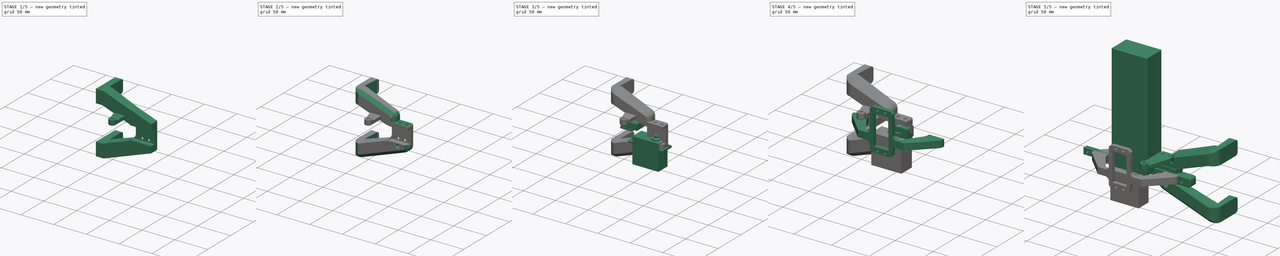
[diagram: build sequence overview — one tinted view per stage of 5, left to right]
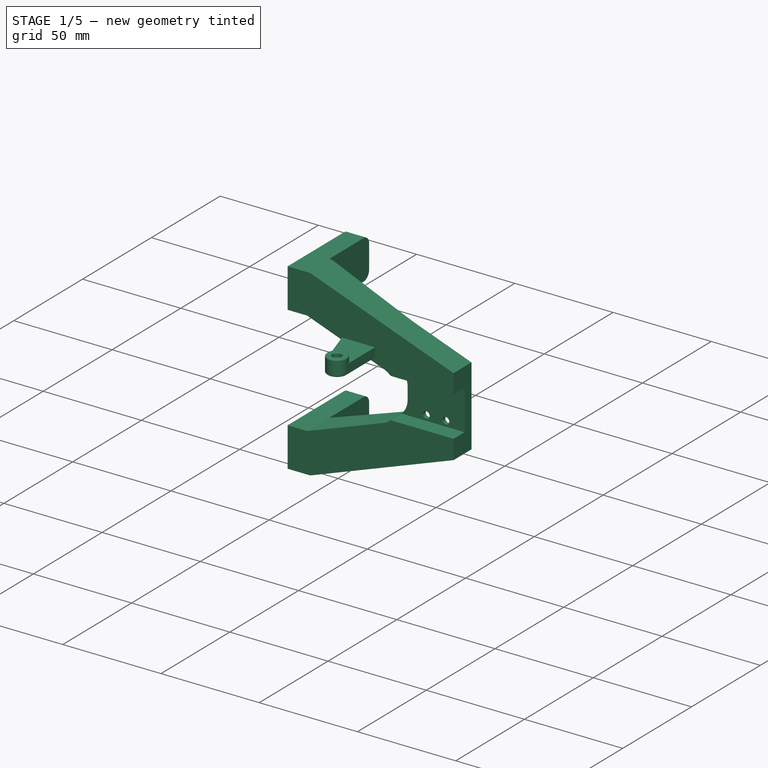
[diagram: stage 1 of 5 — iso view after this stage's code; geometry added in this stage tinted green]
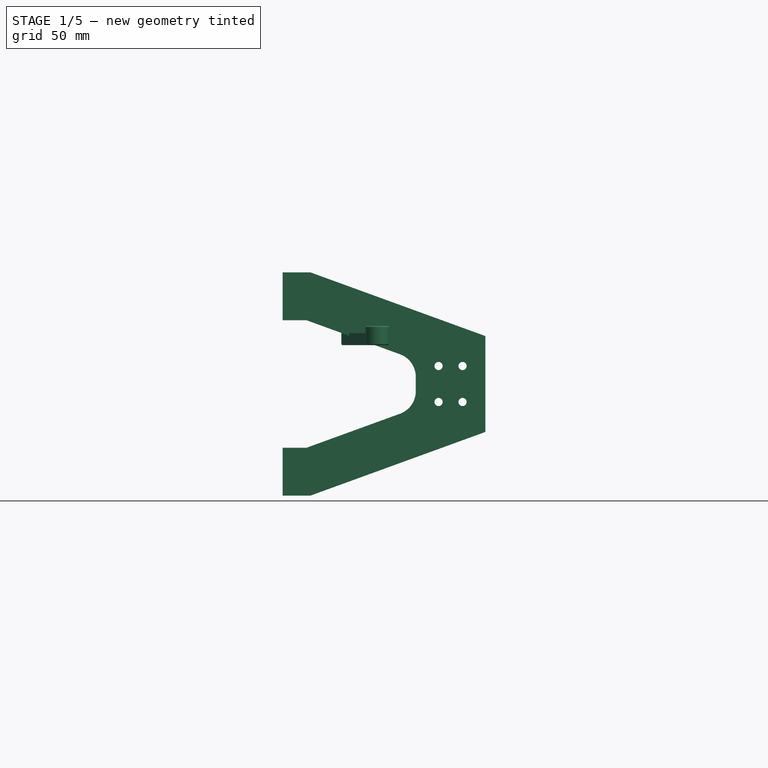
[diagram: stage 1 of 5 — front view after this stage's code; geometry added in this stage tinted green]
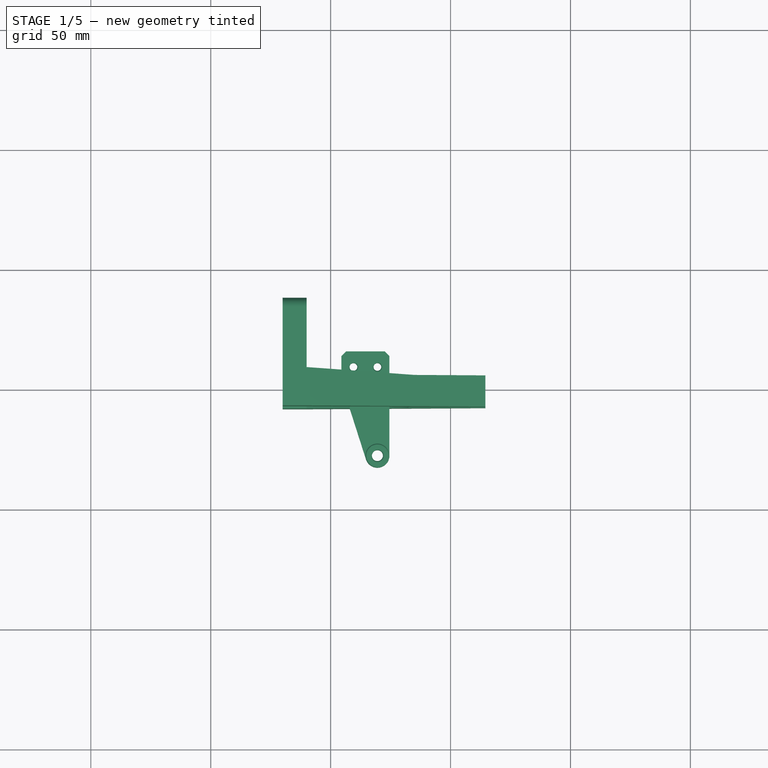
[diagram: stage 1 of 5 — top view after this stage's code; geometry added in this stage tinted green]
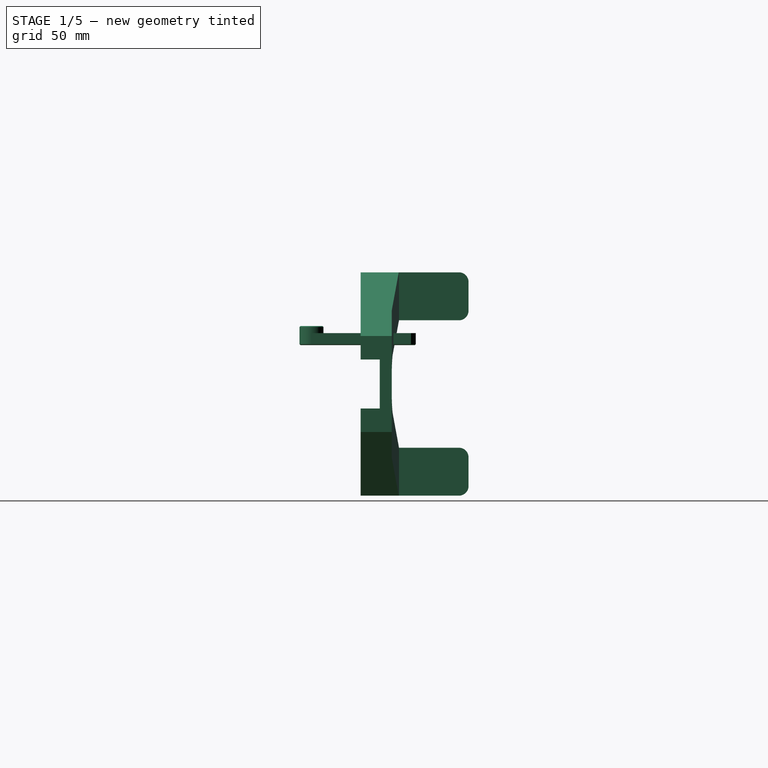
[diagram: stage 1 of 5 — right view after this stage's code; geometry added in this stage tinted green]
FCSTD DOCUMENT  (FreeCAD 2024.113R14555 (Git shallow))
Label: gripper
License: All rights reserved
LicenseURL: https://en.wikipedia.org/wiki/All_rights_reserved
objects: Sketcher::SketchObject×31, PartDesign::Pad×17, PartDesign::Chamfer×16, PartDesign::Pocket×15, PartDesign::Fillet×15, App::Part×13, PartDesign::Body×10, App::Link×8, Part::Mirroring×3, Part::Feature×2, PartDesign::Mirrored×2, PartDesign::Draft×2, PartDesign::SubShapeBinder×1, PartDesign::LinearPattern×1, App::DocumentObjectGroup×1, Part::SubShapeBinder×1, Image::ImagePlane×1
note: 283 computed .brp shape members not serialized (recipe doc carries the construction recipe); baked Part::Feature solids carry a one-line shape summary decoded from their .brp
EXTERNAL_REF file=../holonomic-base.FCStd obj=Link024

FEATURE [PartDesign::Body] Body001  label="Caisse"
  AutoGroupSolids = false
  ClaimAllChildren = false
  ExportMode = 0
  Group = -> [Sketch002,Pad001,Chamfer]
  InvalidShape = false
  Origin = -> Origin003
  Placement = pos=(25,0,0) rot=(0,0,1;0rad)
  Tip = -> Chamfer
  TreeRank = 38
  ValidateShape = false
  _ExportChildren = -> [Pad001,Chamfer]
  _GroupVersion = 1
FEATURE [App::Link] Link  label="Link(Caisse)"
  AutoLinkLabel = true
  AutoPlacement = true
  LinkPlacement = pos=(-50,5.96047e-06,0) rot=(0,0,1;0rad)
  LinkTransform = true
  LinkedObject = -> Body001
  Placement = pos=(-50,5.96047e-06,0) rot=(0,0,1;0rad)
  SyncGroupVisibility = false
  TreeRank = 42
  _LinkVersion = 1
FEATURE [App::Link] Link001  label="Link001(Caisse)"
  AutoLinkLabel = true
  AutoPlacement = true
  LinkPlacement = pos=(-100,1.19209e-05,0) rot=(0,0,1;0rad)
  LinkTransform = true
  LinkedObject = -> Body001
  Placement = pos=(-100,1.19209e-05,0) rot=(0,0,1;0rad)
  SyncGroupVisibility = false
  TreeRank = 43
  _LinkVersion = 1
FEATURE [App::Link] Link002  label="Link002(Caisse)"
  AutoLinkLabel = true
  AutoPlacement = true
  LinkPlacement = pos=(50,-5.96046e-06,0) rot=(0,0,1;0rad)
  LinkTransform = true
  LinkedObject = -> Body001
  Placement = pos=(50,-5.96046e-06,0) rot=(0,0,1;0rad)
  SyncGroupVisibility = false
  TreeRank = 44
  _LinkVersion = 1
FEATURE [App::Part] Part001  label="GameElements"
  ClaimAllChildren = false
  ExportMode = 1
  Group = -> [Body001,Link,Link001,Link002]
  Origin = -> Origin002
  Placement = pos=(0,33,-55) rot=(0,0,1;0rad)
  TreeRank = 28
  _ExportChildren = -> [Body001,Link,Link001,Link002]
  _GroupVersion = 1
FEATURE [Sketcher::SketchObject] Sketch003
  ArcFitTolerance = 1e-06
  AttachmentSupport = -> [XZ_Plane004]
  ExternalBSplineMaxDegree = 5
  ExternalBSplineTolerance = 0.0001
  FullyConstrained = true
  InternalTolerance = 1e-06
  InvalidShape = false
  MakeInternals = false
  MapMode = 5
  Placement = pos=(0,0,0) rot=(1,0,0;1.5708rad)
  Support = -> [XZ_Plane004]
  TreeRank = 82
  ValidateShape = false
  sketch-geometry (8):
    g0: LineSegment StartX=-14.5 StartY=0 StartZ=0 EndX=-14.5 EndY=10 EndZ=0
    g1: LineSegment StartX=-14.5 StartY=10 StartZ=0 EndX=-60 EndY=26.5606 EndZ=0
    g2: LineSegment StartX=-60 StartY=26.5606 StartZ=0 EndX=-70 EndY=26.5606 EndZ=0
    g3: LineSegment StartX=-70 StartY=26.5606 StartZ=0 EndX=-70 EndY=46.5606 EndZ=0
    g4: LineSegment StartX=-70 StartY=46.5606 StartZ=0 EndX=-58.4748 EndY=46.5606 EndZ=0
    g5: LineSegment StartX=-58.4748 StartY=46.5606 StartZ=0 EndX=14.5 EndY=20 EndZ=0
    g6: LineSegment StartX=14.5 StartY=20 StartZ=0 EndX=14.5 EndY=0 EndZ=0
    g7: LineSegment StartX=14.5 StartY=0 StartZ=0 EndX=-14.5 EndY=0 EndZ=0
  constraints (24):
    c: PointOnObject(g0,g-1)
    c: Vertical(g0)
    c: Coincident(g0,g1)
    c: Coincident(g1,g2)
    c: Horizontal(g2)
    c: Coincident(g2,g3)
    c: Vertical(g3)
    c: Coincident(g3,g4)
    c: Horizontal(g4)
    c: Coincident(g4,g5)
    c: Coincident(g5,g6)
    c: Vertical(g6)
    c: Coincident(g6,g7)
    c: Coincident(g7,g0)
    c: Symmetric(g0,g6,g-1)
    c: DistanceY(g0,g0) = 10
    c: DistanceY(g6,g6) = 20
    c: Parallel(g1,g5)
    c: DistanceX(g0,g6) = 29
    c: DistanceX(g1,g-1) = 60
    c: DistanceX(g2,g2) = 10
    c: DistanceY(g3,g3) = 20
    c: Angle(g1,g-1) = 0.349066
    c: DistanceY(g-1,g4) = 46.5606
FEATURE [PartDesign::Pad] Pad002
  AddSubType = 0
  AlongSketchNormal = false
  AutoTaperInnerAngle = true
  CheckUpToFaceLimits = true
  ClaimChildren = false
  Direction = (0,-1,2e-16)
  Fit = 0
  FitJoin = 0
  InnerFit = 0
  InnerFitJoin = 0
  InvalidShape = false
  Length = 37
  Length2 = 10
  Linearize = true
  NewSolid = false
  Profile = -> Sketch003
  ReferenceAxis = -> Sketch003 [N_Axis]
  Refine = true
  Reversed = true
  Suppress = false
  TaperInnerAngle = 0
  TaperInnerAngleRev = 0
  TreeRank = 83
  Type = 0
  ValidateShape = true
  _ProfileBasedVersion = 1
FEATURE [Sketcher::SketchObject] Sketch004
  ArcFitTolerance = 1e-06
  AttachmentSupport = -> [Pad002]
  ExternalBSplineMaxDegree = 5
  ExternalBSplineTolerance = 0.0001
  ExternalGeometry = -> [Pad002]
  FullyConstrained = true
  InternalTolerance = 1e-06
  InvalidShape = false
  MakeInternals = false
  MapMode = 5
  Placement = pos=(0,37,0) rot=(0,0.707107,0.707107;3.14159rad)
  Support = -> [Pad002]
  TreeRank = 84
  ValidateShape = false
  sketch-geometry (4):
    g0: LineSegment StartX=-14.5 StartY=0 StartZ=0 EndX=60 EndY=0 EndZ=0
    g1: LineSegment StartX=60 StartY=0 StartZ=0 EndX=60 EndY=46.5606 EndZ=0
    g2: LineSegment StartX=60 StartY=46.5606 StartZ=0 EndX=-14.5 EndY=46.5606 EndZ=0
    g3: LineSegment StartX=-14.5 StartY=46.5606 StartZ=0 EndX=-14.5 EndY=0 EndZ=0
  constraints (12):
    c: Coincident(g0,g1)
    c: Coincident(g1,g2)
    c: Coincident(g2,g3)
    c: Coincident(g3,g0)
    c: Horizontal(g0)
    c: Horizontal(g2)
    c: Vertical(g1)
    c: Vertical(g3)
    c: PointOnObject(g0,g-1)
    c: PointOnObject(g-3,g1)
    c: PointOnObject(g1,g-4)
    c: PointOnObject(g-5,g3)
FEATURE [PartDesign::Pocket] Pocket002
  AddSubType = 1
  AlongSketchNormal = false
  AutoTaperInnerAngle = true
  BaseFeature = -> Pad002
  CheckUpToFaceLimits = true
  ClaimChildren = false
  Direction = (0,-1,2e-16)
  Fit = 0
  FitJoin = 0
  InnerFit = 0
  InnerFitJoin = 0
  InvalidShape = false
  Length = 32
  Length2 = 10
  Linearize = true
  NewSolid = false
  Profile = -> Sketch004
  ReferenceAxis = -> Sketch004 [N_Axis]
  Refine = true
  Suppress = false
  TaperInnerAngle = 0
  TaperInnerAngleRev = 0
  TreeRank = 85
  Type = 0
  ValidateShape = true
  _ProfileBasedVersion = 1
  _Version = 1
FEATURE [PartDesign::Chamfer] Chamfer001
  AddSubType = 0
  Angle = 45
  Base = -> Pocket002 [Edge17]
  BaseFeature = -> Pocket002
  ChamferType = 1
  FlipDirection = false
  InvalidShape = false
  NewSolid = false
  Refine = true
  Size = 45
  Size2 = 3
  SupportTransform = false
  Suppress = false
  TreeRank = 86
  UseAllEdges = false
  ValidateShape = true
FEATURE [Sketcher::SketchObject] Sketch005
  ArcFitTolerance = 1e-06
  ExternalBSplineMaxDegree = 5
  ExternalBSplineTolerance = 0.0001
  FullyConstrained = true
  InternalTolerance = 1e-06
  InvalidShape = false
  MakeInternals = false
  MapMode = 5
  Placement = pos=(0,5.1e-15,0) rot=(1,0,0;1.5708rad)
  TreeRank = 89
  ValidateShape = false
  sketch-geometry (2):
    g0: Circle CenterX=-5 CenterY=7.5 CenterZ=0 NormalX=0 NormalY=0 NormalZ=1 AngleXU=0 Radius=1.7
    g1: Circle CenterX=5 CenterY=7.5 CenterZ=0 NormalX=0 NormalY=0 NormalZ=1 AngleXU=0 Radius=1.7
  constraints (5):
    c: Equal(g1,g0)
    c: Diameter(g1) = 3.4
    c: Symmetric(g0,g1,g-2)
    c: DistanceY(g-1,g1) = 7.5
    c: DistanceX(g0,g1) = 10
FEATURE [App::Link] Link003  label="Link003(MG996)"
  AutoLinkLabel = true
  AutoPlacement = true
  LinkPlacement = pos=(-5.36442e-07,3,1.07288e-06) rot=(0.57735,-0.57735,0.57735;2.0944rad)
  LinkedObject = -> Part015
  Placement = pos=(-5.36442e-07,3,1.07288e-06) rot=(0.57735,-0.57735,0.57735;2.0944rad)
  SyncGroupVisibility = false
  TreeRank = 118
  _LinkVersion = 1
FEATURE [App::Link] Link004  label="Link004(RoundServoHorn)"
  AutoLinkLabel = true
  AutoPlacement = true
  LinkPlacement = pos=(0,3,7.15256e-07) rot=(1,0,0;1.5708rad)
  LinkedObject = -> Body042
  Placement = pos=(0,3,7.15256e-07) rot=(1,0,0;1.5708rad)
  SyncGroupVisibility = false
  TreeRank = 119
  _LinkVersion = 1
FEATURE [App::Part] Part003  label="ServoSerrage"
  ClaimAllChildren = false
  ExportMode = 1
  Group = -> [Link003,Link004]
  Origin = -> Origin006
  Placement = pos=(0,-7,9e-16) rot=(1,0,0;3.14159rad)
  TreeRank = 105
  _ExportChildren = -> [Link003,Link004]
  _GroupVersion = 1
FEATURE [PartDesign::Fillet] Fillet
  AddSubType = 0
  Base = -> Chamfer001 [Edge32,Edge18]
  BaseFeature = -> Chamfer001
  InvalidShape = false
  NewSolid = false
  Radius = 4
  Refine = true
  SupportTransform = false
  Suppress = false
  TreeRank = 120
  UseAllEdges = false
  ValidateShape = true
FEATURE [PartDesign::Pocket] Pocket003
  AddSubType = 1
  AlongSketchNormal = false
  AutoTaperInnerAngle = true
  BaseFeature = -> Fillet
  CheckUpToFaceLimits = true
  ClaimChildren = false
  Direction = (0,1,-2e-16)
  Fit = 0
  FitJoin = 0
  InnerFit = 0
  InnerFitJoin = 0
  InvalidShape = false
  Length = 10
  Length2 = 10
  Linearize = true
  NewSolid = false
  Profile = -> Sketch005
  ReferenceAxis = -> Sketch005 [N_Axis]
  Refine = true
  Suppress = false
  TaperInnerAngle = 0
  TaperInnerAngleRev = 0
  TreeRank = 90
  Type = 0
  ValidateShape = true
  _ProfileBasedVersion = 1
  _Version = 1
FEATURE [PartDesign::Chamfer] Chamfer002
  AddSubType = 0
  Angle = 45
  Base = -> Pocket003 [Edge39,Edge40]
  BaseFeature = -> Pocket003
  ChamferType = 0
  FlipDirection = false
  InvalidShape = false
  NewSolid = false
  Refine = true
  Size = 3
  Size2 = 1
  SupportTransform = false
  Suppress = false
  TreeRank = 91
  UseAllEdges = false
  ValidateShape = true
FEATURE [PartDesign::Fillet] Fillet003
  AddSubType = 0
  Base = -> Chamfer002 [Edge20]
  BaseFeature = -> Chamfer002
  InvalidShape = false
  NewSolid = false
  Radius = 10
  Refine = true
  SupportTransform = false
  Suppress = false
  TreeRank = 93
  UseAllEdges = false
  ValidateShape = true
FEATURE [PartDesign::Pad] Pad003
  AddSubType = 0
  AlongSketchNormal = false
  AutoTaperInnerAngle = true
  BaseFeature = -> Fillet003
  CheckUpToFaceLimits = true
  ClaimChildren = false
  Direction = (0,-1,0)
  Fit = 0
  FitJoin = 0
  InnerFit = 0
  InnerFitJoin = 0
  InvalidShape = false
  Length = 8
  Length2 = 10
  Linearize = true
  NewSolid = false
  Profile = -> Fillet003 [Face13]
  Refine = true
  Suppress = false
  TaperInnerAngle = 0
  TaperInnerAngleRev = 0
  TreeRank = 122
  Type = 0
  ValidateShape = true
  _ProfileBasedVersion = 1
FEATURE [Sketcher::SketchObject] Sketch006
  ArcFitTolerance = 1e-06
  AttachmentSupport = -> [Pad003]
  ExternalBSplineMaxDegree = 5
  ExternalBSplineTolerance = 0.0001
  ExternalGeometry = -> [Pad003]
  FullyConstrained = true
  InternalTolerance = 1e-06
  InvalidShape = false
  MakeInternals = false
  MapMode = 5
  Placement = pos=(0,-8,0) rot=(1,0,0;1.5708rad)
  Support = -> [Pad003]
  TreeRank = 123
  ValidateShape = false
  sketch-geometry (4):
    g0: LineSegment StartX=14.5 StartY=0 StartZ=0 EndX=-25.5 EndY=0 EndZ=0
    g1: LineSegment StartX=-25.5 StartY=0 StartZ=0 EndX=-25.5 EndY=10.2 EndZ=0
    g2: LineSegment StartX=-25.5 StartY=10.2 StartZ=0 EndX=14.5 EndY=10.2 EndZ=0
    g3: LineSegment StartX=14.5 StartY=10.2 StartZ=0 EndX=14.5 EndY=0 EndZ=0
  constraints (11):
    c: Coincident(g0,g1)
    c: Coincident(g1,g2)
    c: Coincident(g2,g3)
    c: Coincident(g3,g0)
    c: Horizontal(g0)
    c: Horizontal(g2)
    c: Vertical(g1)
    c: DistanceX(g0,g0) = 40
    c: PointOnObject(g2,g-3)
    c: DistanceY(g3,g3) = 10.2
    c: Coincident(g-3,g0)
FEATURE [PartDesign::Pocket] Pocket004
  AddSubType = 1
  AlongSketchNormal = false
  AutoTaperInnerAngle = true
  BaseFeature = -> Pad003
  CheckUpToFaceLimits = true
  ClaimChildren = false
  Direction = (0,1,-2e-16)
  Fit = 0
  FitJoin = 0
  InnerFit = 0
  InnerFitJoin = 0
  InvalidShape = false
  Length = 8
  Length2 = 10
  Linearize = true
  NewSolid = false
  Profile = -> Sketch006
  ReferenceAxis = -> Sketch006 [N_Axis]
  Refine = true
  Suppress = false
  TaperInnerAngle = 0
  TaperInnerAngleRev = 0
  TreeRank = 124
  Type = 0
  ValidateShape = true
  _ProfileBasedVersion = 1
  _Version = 1
FEATURE [PartDesign::Mirrored] Mirrored
  AddSubType = 0
  BaseFeature = -> Pocket004
  CopyShape = false
  InvalidShape = false
  MirrorPlane = -> XY_Plane004
  NewSolid = false
  OriginalSubs = -> [Pad002,Pocket002,Chamfer001,Fillet,Pocket003,Chamfer002,Fillet003,Pad003,Pocket004]
  Originals = -> [Pad002,Pocket002,Chamfer001,Fillet,Pocket003,Chamfer002,Fillet003,Pad003,Pocket004]
  ParallelTransform = true
  Refine = true
  SubTransform = true
  Suppress = false
  TreeRank = 96
  ValidateShape = true
  _Version = 3
FEATURE [PartDesign::Body] Body002  label="Jaw"
  AutoGroupSolids = false
  ClaimAllChildren = false
  ExportMode = 0
  Group = -> [Sketch003,Pad002,Sketch004,Pocket002,Chamfer001,Fillet,Sketch005,Pocket003,Chamfer002,Fillet003,Pad003,Sketch006,Pocket004,Mirrored,Draft,Draft001,Fillet004,Fillet026,Chamfer003,Fillet005,Sketch011,Pocket008,Chamfer008,Sketch241,Pocket036,Sketch242,Pocket037,Fillet027,Fillet028,Chamfer032,Chamfer033]
  InvalidShape = false
  Origin = -> Origin005
  Placement = pos=(0,10,0) rot=(0,0,1;0rad)
  Tip = -> Chamfer033
  TreeRank = 81
  ValidateShape = false
  _ExportChildren = -> [Pad002,Pocket002,Chamfer001,Fillet,Pocket003,Chamfer002,Fillet003,Pad003,Pocket004,Mirrored,Draft,Draft001,Fillet004,Fillet026,Chamfer003,Fillet005,Pocket008,Chamfer008,Pocket036,Pocket037,Fillet027,Fillet028,Chamfer032,Chamfer033]
  _GroupVersion = 1
FEATURE [App::Part] Part002  label="GripperJaw"
  ClaimAllChildren = false
  ExportMode = 1
  Group = -> [Solid,Body002]
  Origin = -> Origin004
  Placement = pos=(-40,0,0) rot=(0,0,1;0rad)
  TreeRank = 59
  _ExportChildren = -> [Solid,Body002]
  _GroupVersion = 1
FEATURE [Part::SubShapeBinder] Import  label="Import(Chamfer033)"
  BindCopyOnChange = 0
  BindMode = 0
  ClaimChildren = false
  Context = -> <external ../holonomic-base.FCStd>#Link024 [Part004.Part005.Part.Body045.Import.]
  EdgeTolerance = 1e-06
  FillStyle = 0
  Fuse = false
  InvalidShape = false
  MakeFace = false
  MergeEdges = true
  OffsetFill = false
  OffsetIntersection = false
  OffsetJoinType = 0
  OffsetOpenResult = false
  Outline = false
  PartialLoad = false
  Relative = true
  SplitEdges = false
  Support = -> [Part002[Body002.Chamfer033.]]
  TightBound = false
  TreeRank = 297
  ValidateShape = false
  _Version = 8
FEATURE [Sketcher::SketchObject] Sketch243
  ArcFitTolerance = 1e-06
  AttachmentSupport = -> [Import]
  ExternalBSplineMaxDegree = 5
  ExternalBSplineTolerance = 0.0001
  ExternalGeometry = -> [Import]
  FullyConstrained = true
  InternalTolerance = 1e-06
  InvalidShape = false
  MakeInternals = false
  MapMode = 5
  Placement = pos=(0,3.6e-15,16.2) rot=(0,0,1;0rad)
  Support = -> [Import]
  TreeRank = 298
  ValidateShape = false
  sketch-geometry (8):
    g0: LineSegment StartX=-45.5 StartY=15 StartZ=0 EndX=-25.5 EndY=15 EndZ=0
    g1: LineSegment StartX=-25.5 StartY=15 StartZ=0 EndX=-25.5 EndY=-28.5 EndZ=0
    g2: LineSegment StartX=-35.2625 StartY=-30.0226 StartZ=0 EndX=-45.5 EndY=2 EndZ=0
    g3: LineSegment StartX=-45.5 StartY=15 StartZ=0 EndX=-45.5 EndY=2 EndZ=0
    g4: Circle CenterX=-40.5 CenterY=8.5 CenterZ=0 NormalX=0 NormalY=0 NormalZ=1 AngleXU=0 Radius=1.6
    g5: Circle CenterX=-30.5 CenterY=8.5 CenterZ=0 NormalX=0 NormalY=0 NormalZ=1 AngleXU=0 Radius=1.6
    g6: Circle CenterX=-30.5 CenterY=-28.5 CenterZ=0 NormalX=0 NormalY=0 NormalZ=1 AngleXU=0 Radius=2.3
    g7: ArcOfCircle CenterX=-30.5 CenterY=-28.5 CenterZ=0 NormalX=0 NormalY=0 NormalZ=1 AngleXU=0 Radius=5 StartAngle=3.45102 EndAngle=6.28319
  constraints (19):
    c: Coincident(g0,g-3)
    c: Coincident(g0,g-7)
    c: Coincident(g1,g0)
    c: Vertical(g1)
    c: Coincident(g3,g0)
    c: Coincident(g3,g2)
    c: Vertical(g3)
    c: Horizontal(g-7,g2)
    c: Coincident(g4,g-5)
    c: Coincident(g5,g-4)
    c: Equal(g5,g4)
    c: Diameter(g5) = 3.2
    c: Coincident(g7,g6)
    c: Tangent(g7,g1) = 1.5708
    c: Tangent(g7,g2) = 1.5708
    c: Vertical(g5,g6)
    c: Diameter(g6) = 4.6
    c: DistanceY(g-1,g5) = 8.5
    c: DistanceY(g6,g-1) = 28.5
FEATURE [PartDesign::Pad] Pad100
  AddSubType = 0
  AlongSketchNormal = false
  AutoTaperInnerAngle = true
  CheckUpToFaceLimits = true
  ClaimChildren = false
  Direction = (0,2e-16,1)
  Fit = 0
  FitJoin = 0
  InnerFit = 0
  InnerFitJoin = 0
  InvalidShape = false
  Length = 5
  Length2 = 10
  Linearize = true
  NewSolid = false
  Profile = -> Sketch243
  ReferenceAxis = -> Sketch243 [N_Axis]
  Refine = true
  Suppress = false
  TaperInnerAngle = 0
  TaperInnerAngleRev = 0
  TreeRank = 299
  Type = 0
  ValidateShape = true
  _ProfileBasedVersion = 1
FEATURE [Sketcher::SketchObject] Sketch244
  ArcFitTolerance = 1e-06
  AttachmentSupport = -> [Pad100]
  ExternalBSplineMaxDegree = 5
  ExternalBSplineTolerance = 0.0001
  ExternalGeometry = -> [Pad100]
  FullyConstrained = true
  InternalTolerance = 1e-06
  InvalidShape = false
  MakeInternals = false
  MapMode = 5
  Placement = pos=(0,5.1e-15,21.2) rot=(0,0,1;0rad)
  Support = -> [Pad100]
  TreeRank = 300
  ValidateShape = false
  sketch-geometry (1):
    g0: Circle CenterX=-30.5 CenterY=-28.5 CenterZ=0 NormalX=0 NormalY=0 NormalZ=1 AngleXU=0 Radius=5
  constraints (2):
    c: Coincident(g0,g-4)
    c: PointOnObject(g-4,g0)
FEATURE [PartDesign::Pad] Pad101
  AddSubType = 0
  AlongSketchNormal = false
  AutoTaperInnerAngle = true
  BaseFeature = -> Pad100
  CheckUpToFaceLimits = true
  ClaimChildren = false
  Direction = (0,2e-16,1)
  Fit = 0
  FitJoin = 0
  InnerFit = 0
  InnerFitJoin = 0
  InvalidShape = false
  Length = 3
  Length2 = 10
  Linearize = true
  NewSolid = false
  Profile = -> Sketch244
  ReferenceAxis = -> Sketch244 [N_Axis]
  Refine = true
  Suppress = false
  TaperInnerAngle = 0
  TaperInnerAngleRev = 0
  TreeRank = 301
  Type = 0
  ValidateShape = true
  _ProfileBasedVersion = 1
FEATURE [PartDesign::Chamfer] Chamfer034
  AddSubType = 0
  Angle = 45
  Base = -> Pad101 [Edge19,Edge5]
  BaseFeature = -> Pad101
  ChamferType = 0
  FlipDirection = false
  InvalidShape = false
  NewSolid = false
  Refine = true
  Size = 2
  Size2 = 1
  SupportTransform = false
  Suppress = false
  TreeRank = 302
  UseAllEdges = false
  ValidateShape = true
FEATURE [PartDesign::Chamfer] Chamfer035
  AddSubType = 0
  Angle = 45
  Base = -> Chamfer034 [Face2,Edge30,Edge22,Edge23,Edge27]
  BaseFeature = -> Chamfer034
  ChamferType = 0
  FlipDirection = false
  InvalidShape = false
  NewSolid = false
  Refine = true
  Size = 0.4
  Size2 = 1
  SupportTransform = false
  Suppress = false
  TreeRank = 303
  UseAllEdges = false
  ValidateShape = true
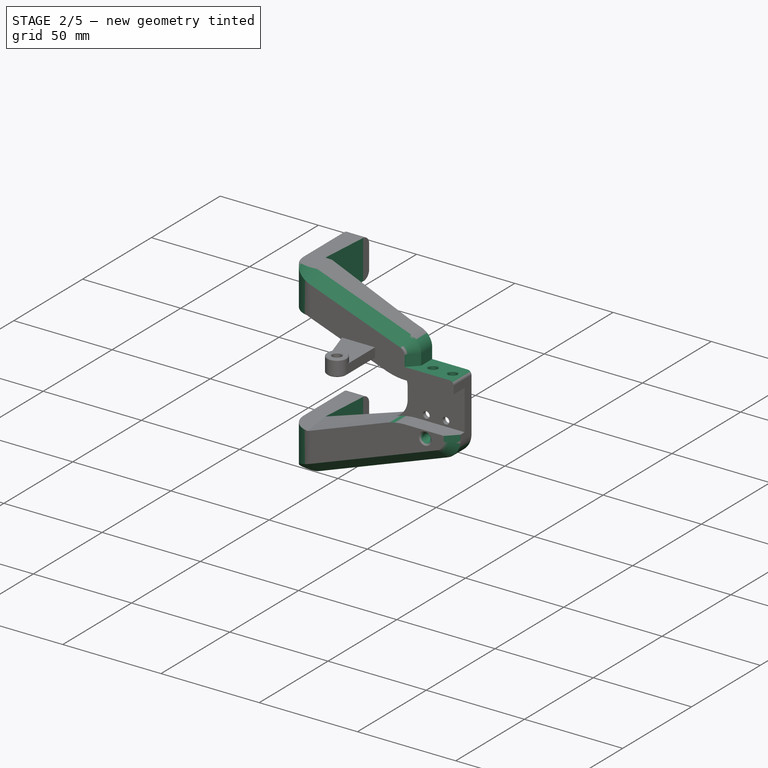
[diagram: stage 2 of 5 — iso view after this stage's code; geometry added in this stage tinted green]
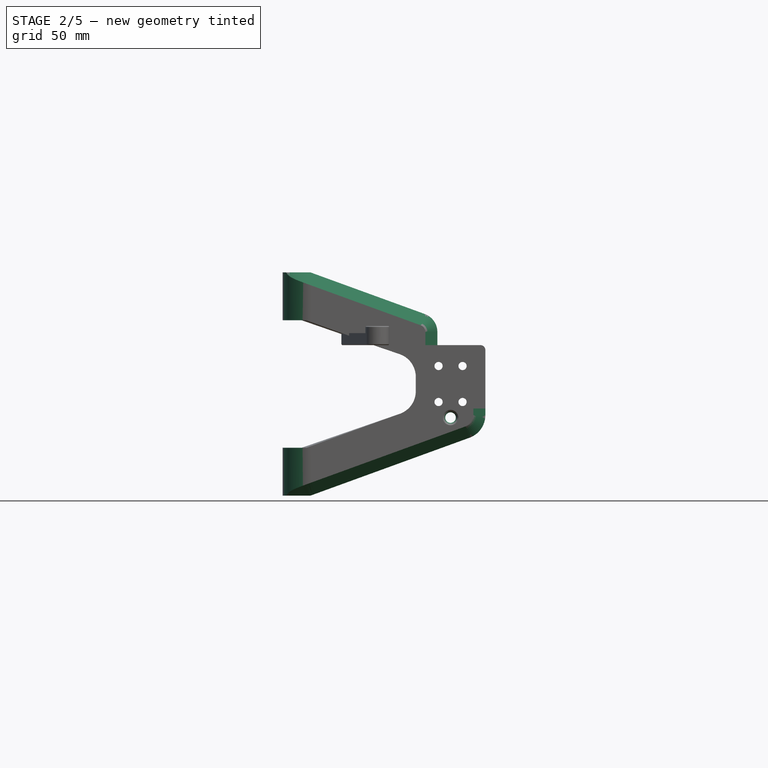
[diagram: stage 2 of 5 — front view after this stage's code; geometry added in this stage tinted green]
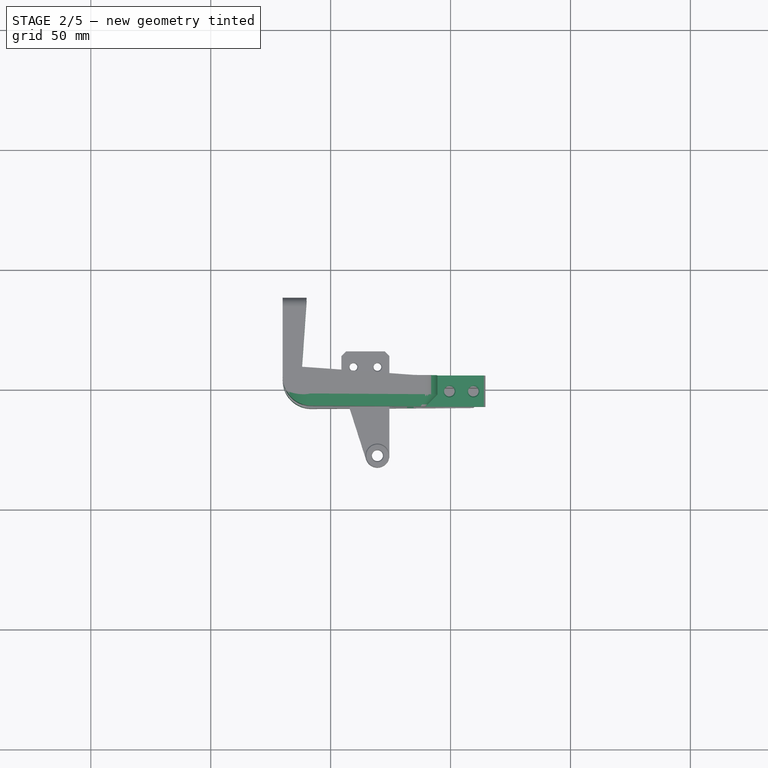
[diagram: stage 2 of 5 — top view after this stage's code; geometry added in this stage tinted green]
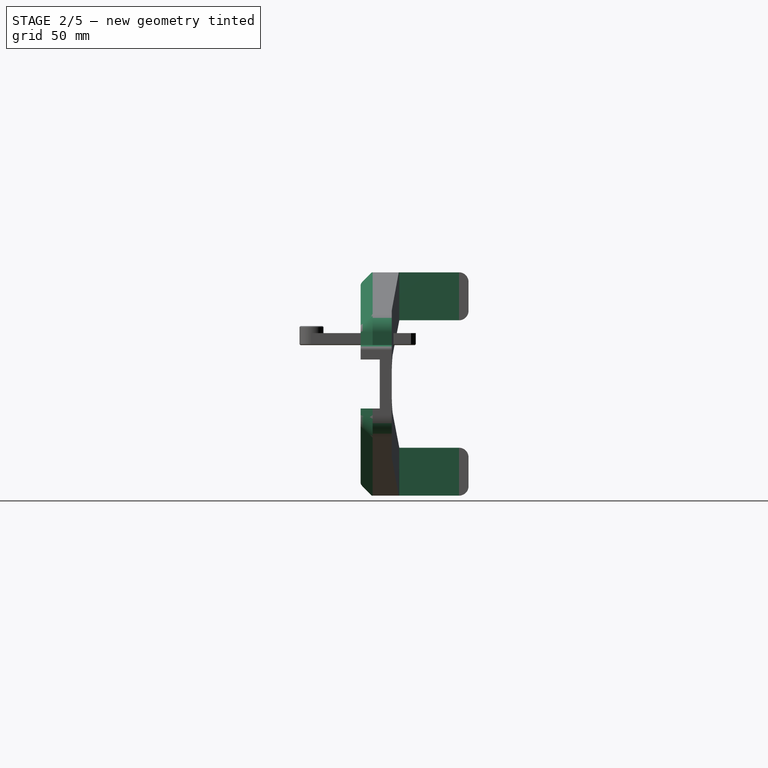
[diagram: stage 2 of 5 — right view after this stage's code; geometry added in this stage tinted green]
FEATURE [PartDesign::Draft] Draft
  AddSubType = 0
  Angle = 4
  Base = -> Mirrored [Face5]
  BaseFeature = -> Mirrored
  InvalidShape = false
  NeutralPlane = -> Mirrored [Face11]
  NewSolid = false
  Refine = true
  Reversed = true
  SupportTransform = false
  Suppress = false
  TreeRank = 97
  ValidateShape = true
FEATURE [PartDesign::Draft] Draft001
  AddSubType = 0
  Angle = 4
  Base = -> Draft [Face24]
  BaseFeature = -> Draft
  InvalidShape = false
  NeutralPlane = -> Draft [Face26]
  NewSolid = false
  Refine = true
  Reversed = true
  SupportTransform = false
  Suppress = false
  TreeRank = 98
  ValidateShape = true
FEATURE [PartDesign::Fillet] Fillet004
  AddSubType = 0
  Base = -> Draft001 [Edge31,Edge93]
  BaseFeature = -> Draft001
  InvalidShape = false
  NewSolid = false
  Radius = 12
  Refine = true
  SupportTransform = false
  Suppress = false
  TreeRank = 125
  UseAllEdges = false
  ValidateShape = true
FEATURE [App::Part] Part018  label="ProtoV2"
  ClaimAllChildren = false
  ExportMode = 1
  Group = -> [Link007,Body044,Part__Mirroring002]
  Origin = -> Origin067
  Placement = pos=(4e-15,0,0) rot=(0,0,1;3.14159rad)
  TreeRank = 224
  _ExportChildren = -> [Link007,Part__Mirroring002]
  _GroupVersion = 1
FEATURE [PartDesign::Fillet] Fillet026
  AddSubType = 0
  Base = -> Fillet004 [Edge38]
  BaseFeature = -> Fillet004
  InvalidShape = false
  NewSolid = false
  Radius = 10
  Refine = true
  SupportTransform = false
  Suppress = false
  TreeRank = 278
  UseAllEdges = false
  ValidateShape = true
FEATURE [PartDesign::Chamfer] Chamfer003
  AddSubType = 0
  Angle = 45
  Base = -> Fillet026 [Edge27]
  BaseFeature = -> Fillet026
  ChamferType = 0
  FlipDirection = false
  InvalidShape = false
  NewSolid = false
  Refine = true
  Size = 5
  Size2 = 1
  SupportTransform = false
  Suppress = false
  TreeRank = 126
  UseAllEdges = false
  ValidateShape = true
FEATURE [PartDesign::Fillet] Fillet005
  AddSubType = 0
  Base = -> Chamfer003 [Edge27,Edge45]
  BaseFeature = -> Chamfer003
  InvalidShape = false
  NewSolid = false
  Radius = 30
  Refine = true
  SupportTransform = false
  Suppress = false
  TreeRank = 127
  UseAllEdges = false
  ValidateShape = true
FEATURE [PartDesign::Pocket] Pocket008
  AddSubType = 1
  AlongSketchNormal = false
  AutoTaperInnerAngle = true
  BaseFeature = -> Fillet005
  CheckUpToFaceLimits = true
  ClaimChildren = false
  Direction = (0,1,-2e-16)
  Fit = 0
  FitJoin = 0
  InnerFit = 0
  InnerFitJoin = 0
  InvalidShape = false
  Length = 20
  Length2 = 10
  Linearize = true
  NewSolid = false
  Profile = -> Sketch011
  ReferenceAxis = -> Sketch011 [N_Axis]
  Refine = true
  Suppress = false
  TaperInnerAngle = 0
  TaperInnerAngleRev = 0
  TreeRank = 153
  Type = 0
  ValidateShape = true
  _ProfileBasedVersion = 1
  _Version = 1
FEATURE [PartDesign::Chamfer] Chamfer008
  AddSubType = 0
  Angle = 45
  Base = -> Pocket008 [Edge51,Edge13]
  BaseFeature = -> Pocket008
  ChamferType = 0
  FlipDirection = false
  InvalidShape = false
  NewSolid = false
  Refine = true
  Size = 1
  Size2 = 1
  SupportTransform = false
  Suppress = false
  TreeRank = 154
  UseAllEdges = false
  ValidateShape = true
FEATURE [Sketcher::SketchObject] Sketch241
  ArcFitTolerance = 1e-06
  AttachmentSupport = -> [Chamfer008]
  ExternalBSplineMaxDegree = 5
  ExternalBSplineTolerance = 0.0001
  ExternalGeometry = -> [Chamfer008]
  FullyConstrained = true
  InternalTolerance = 1e-06
  InvalidShape = false
  MakeInternals = false
  MapMode = 5
  Placement = pos=(0,-8,0) rot=(1,0,0;1.5708rad)
  Support = -> [Chamfer008]
  TreeRank = 279
  ValidateShape = false
  sketch-geometry (4):
    g0: LineSegment StartX=14.5 StartY=16.2 StartZ=0 EndX=-5.5 EndY=16.2 EndZ=0
    g1: LineSegment StartX=-5.5 StartY=16.2 StartZ=0 EndX=-5.5 EndY=27.2794 EndZ=0
    g2: LineSegment StartX=-5.5 StartY=27.2794 StartZ=0 EndX=14.5 EndY=27.2794 EndZ=0
    g3: LineSegment StartX=14.5 StartY=27.2794 StartZ=0 EndX=14.5 EndY=16.2 EndZ=0
  constraints (12):
    c: Coincident(g0,g1)
    c: Coincident(g1,g2)
    c: Coincident(g2,g3)
    c: Coincident(g3,g0)
    c: Horizontal(g0)
    c: Horizontal(g2)
    c: Vertical(g1)
    c: Vertical(g3)
    c: PointOnObject(g0,g-3)
    c: PointOnObject(g1,g-4)
    c: DistanceY(g-3,g0) = 6
    c: DistanceX(g2,g2) = 20
FEATURE [PartDesign::Pocket] Pocket036
  AddSubType = 1
  AlongSketchNormal = false
  AutoTaperInnerAngle = true
  BaseFeature = -> Chamfer008
  CheckUpToFaceLimits = true
  ClaimChildren = false
  Direction = (0,1,-2e-16)
  Fit = 0
  FitJoin = 0
  InnerFit = 0
  InnerFitJoin = 0
  InvalidShape = false
  Length = 25
  Length2 = 10
  Linearize = true
  NewSolid = false
  Profile = -> Sketch241
  ReferenceAxis = -> Sketch241 [N_Axis]
  Refine = true
  Suppress = false
  TaperInnerAngle = 0
  TaperInnerAngleRev = 0
  TreeRank = 280
  Type = 0
  ValidateShape = true
  _ProfileBasedVersion = 1
  _Version = 1
FEATURE [Sketcher::SketchObject] Sketch242
  ArcFitTolerance = 1e-06
  AttachmentSupport = -> [Pocket036]
  ExternalBSplineMaxDegree = 5
  ExternalBSplineTolerance = 0.0001
  ExternalGeometry = -> [Pocket036]
  FullyConstrained = true
  InternalTolerance = 1e-06
  InvalidShape = false
  MakeInternals = false
  MapMode = 5
  Placement = pos=(0,3.6e-15,16.2) rot=(0,0,1;0rad)
  Support = -> [Pocket036]
  TreeRank = 281
  ValidateShape = false
  sketch-geometry (3):
    g0: Circle CenterX=9.5 CenterY=-1.5 CenterZ=0 NormalX=0 NormalY=0 NormalZ=1 AngleXU=0 Radius=2.2
    g1: Circle CenterX=-0.5 CenterY=-1.5 CenterZ=0 NormalX=0 NormalY=0 NormalZ=1 AngleXU=0 Radius=2.2
    g2: LineSegment [constr] StartX=4.5 StartY=5 StartZ=0 EndX=4.5 EndY=-8 EndZ=0
  constraints (7):
    c: Diameter(g0) = 4.4
    c: Equal(g1,g0)
    c: Horizontal(g1,g0)
    c: PointOnObject(g2,g-4)
    c: Symmetric(g-3,g-3,g2)
    c: Symmetric(g1,g0,g2)
    c: Symmetric(g2,g-3,g0)
FEATURE [PartDesign::Pocket] Pocket037
  AddSubType = 1
  AlongSketchNormal = false
  AutoTaperInnerAngle = true
  BaseFeature = -> Pocket036
  CheckUpToFaceLimits = true
  ClaimChildren = false
  Direction = (0,-2e-16,-1)
  Fit = 0
  FitJoin = 0
  InnerFit = 0
  InnerFitJoin = 0
  InvalidShape = false
  Length = 6
  Length2 = 10
  Linearize = true
  NewSolid = false
  Profile = -> Sketch242
  ReferenceAxis = -> Sketch242 [N_Axis]
  Refine = true
  Suppress = false
  TaperInnerAngle = 0
  TaperInnerAngleRev = 0
  TreeRank = 282
  Type = 0
  ValidateShape = true
  _ProfileBasedVersion = 1
  _Version = 1
FEATURE [PartDesign::Fillet] Fillet027
  AddSubType = 0
  Base = -> Pocket037 [Edge119]
  BaseFeature = -> Pocket037
  InvalidShape = false
  NewSolid = false
  Radius = 8
  Refine = true
  SupportTransform = false
  Suppress = false
  TreeRank = 283
  UseAllEdges = false
  ValidateShape = true
FEATURE [PartDesign::Fillet] Fillet028
  AddSubType = 0
  Base = -> Fillet027 [Edge24]
  BaseFeature = -> Fillet027
  InvalidShape = false
  NewSolid = false
  Radius = 2
  Refine = true
  SupportTransform = false
  Suppress = false
  TreeRank = 284
  UseAllEdges = false
  ValidateShape = true
FEATURE [PartDesign::Chamfer] Chamfer032
  AddSubType = 0
  Angle = 45
  Base = -> Fillet028 [Edge22,Edge23]
  BaseFeature = -> Fillet028
  ChamferType = 0
  FlipDirection = false
  InvalidShape = false
  NewSolid = false
  Refine = true
  Size = 0.4
  Size2 = 1
  SupportTransform = false
  Suppress = false
  TreeRank = 285
  UseAllEdges = false
  ValidateShape = true
FEATURE [PartDesign::Chamfer] Chamfer033
  AddSubType = 0
  Angle = 45
  Base = -> Chamfer032 [Edge14]
  BaseFeature = -> Chamfer032
  ChamferType = 0
  FlipDirection = false
  InvalidShape = false
  NewSolid = false
  Refine = true
  Size = 5
  Size2 = 1
  SupportTransform = false
  Suppress = false
  TreeRank = 286
  UseAllEdges = false
  ValidateShape = true
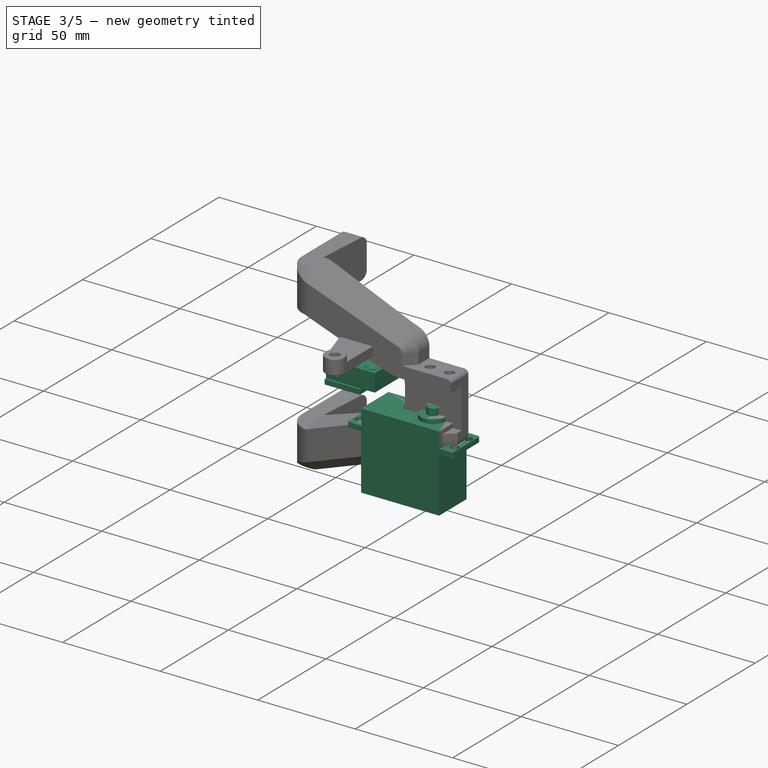
[diagram: stage 3 of 5 — iso view after this stage's code; geometry added in this stage tinted green]
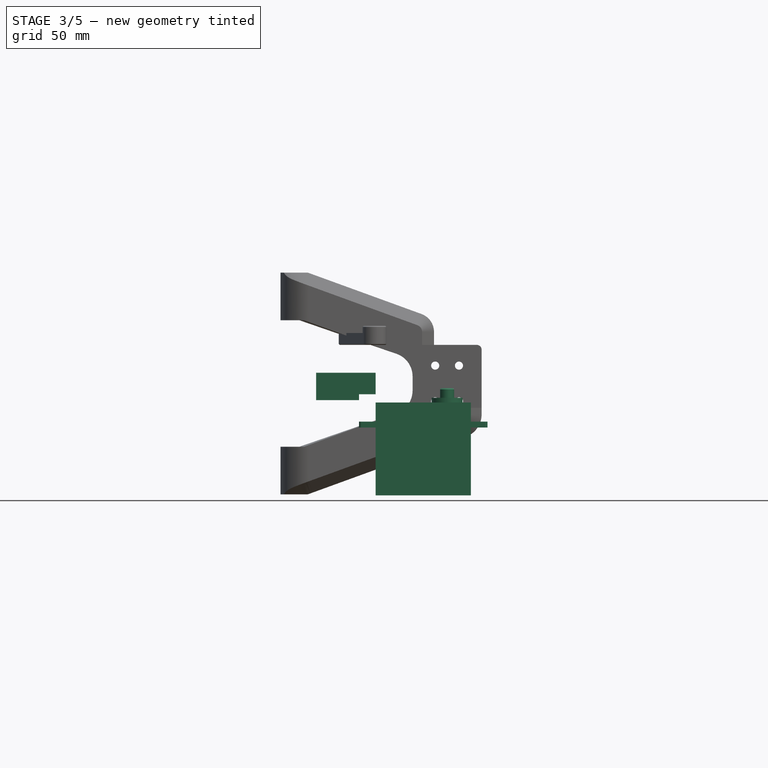
[diagram: stage 3 of 5 — front view after this stage's code; geometry added in this stage tinted green]
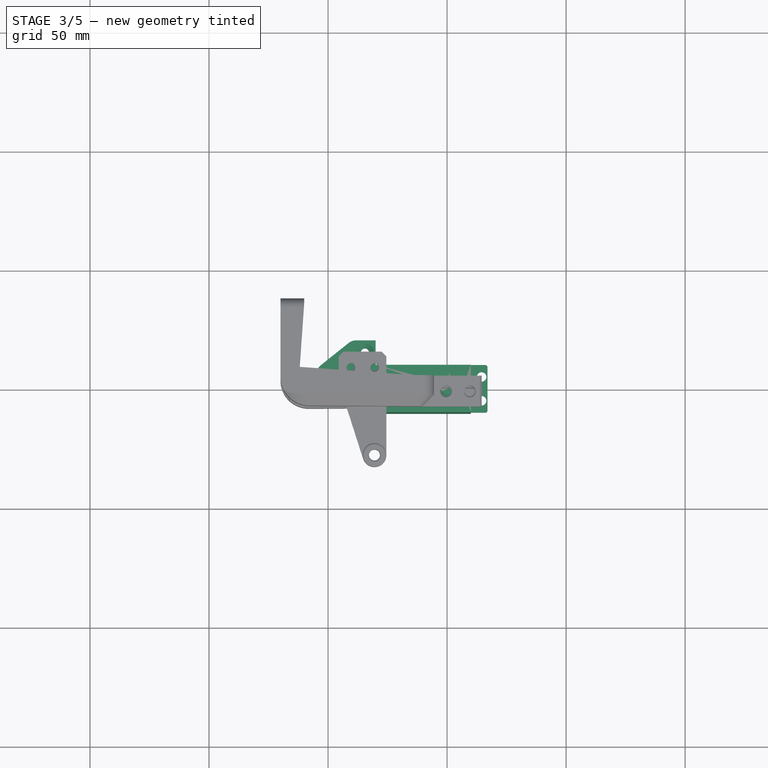
[diagram: stage 3 of 5 — top view after this stage's code; geometry added in this stage tinted green]
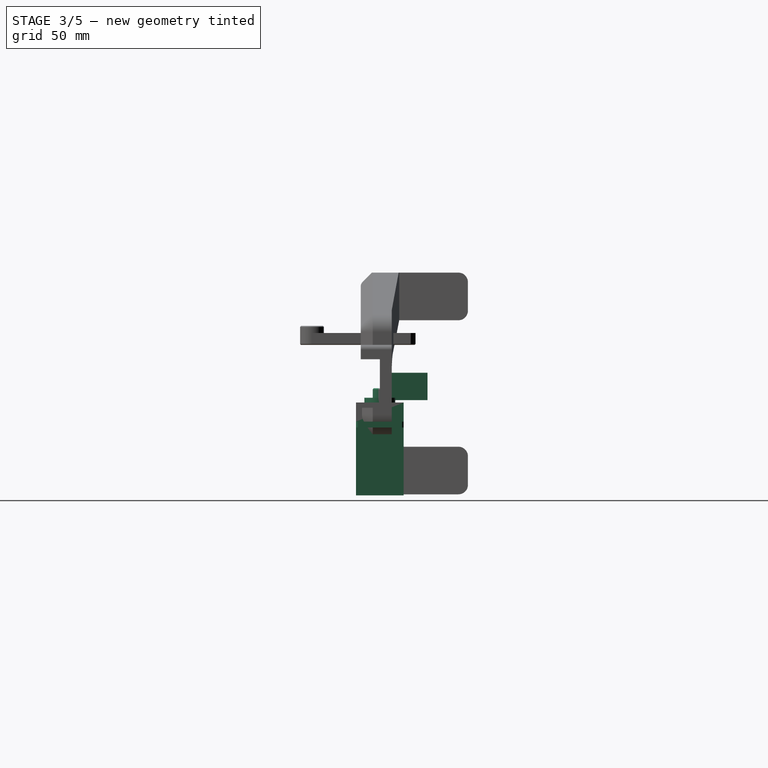
[diagram: stage 3 of 5 — right view after this stage's code; geometry added in this stage tinted green]
FEATURE [PartDesign::Body] Body042  label="RoundServoHorn"
  AutoGroupSolids = false
  ClaimAllChildren = false
  ExportMode = 0
  FixShape = 1
  Group = -> [Sketch088,Pad052,Sketch089,Pad051]
  InvalidShape = false
  Origin = -> Origin063
  Placement = pos=(0,0,0) rot=(1,0,0;1.5708rad)
  SingleSolid = true
  Tip = -> Pad051
  TreeRank = 211
  ValidateShape = false
  _ExportChildren = -> [Pad052,Pad051]
  _GroupVersion = 1
FEATURE [Sketcher::SketchObject] Sketch086
  ArcFitTolerance = 0
  ExternalBSplineMaxDegree = 0
  ExternalBSplineTolerance = 0
  FixShape = 1
  FullyConstrained = true
  InternalTolerance = 1e-06
  InvalidShape = false
  MakeInternals = false
  MapMode = 5
  Placement = pos=(0,0,0) rot=(1,0,0;1.5708rad)
  TreeRank = 0
  ValidateShape = false
  sketch-geometry (12):
    g0: LineSegment StartX=-37 StartY=-18.5 StartZ=0 EndX=-37 EndY=-16 EndZ=0
    g1: LineSegment StartX=-37 StartY=-16 StartZ=0 EndX=-30 EndY=-16 EndZ=0
    g2: LineSegment StartX=-30 StartY=-16 StartZ=0 EndX=-30 EndY=-8 EndZ=0
    g3: LineSegment StartX=-30 StartY=-8 StartZ=0 EndX=10 EndY=-8 EndZ=0
    g4: LineSegment StartX=10 StartY=-8 StartZ=0 EndX=10 EndY=-16 EndZ=0
    g5: LineSegment StartX=10 StartY=-16 StartZ=0 EndX=17 EndY=-16 EndZ=0
    g6: LineSegment StartX=17 StartY=-16 StartZ=0 EndX=17 EndY=-18.5 EndZ=0
    g7: LineSegment StartX=17 StartY=-18.5 StartZ=0 EndX=10 EndY=-18.5 EndZ=0
    g8: LineSegment StartX=10 StartY=-18.5 StartZ=0 EndX=10 EndY=-47 EndZ=0
    g9: LineSegment StartX=10 StartY=-47 StartZ=0 EndX=-30 EndY=-47 EndZ=0
    g10: LineSegment StartX=-30 StartY=-47 StartZ=0 EndX=-30 EndY=-18.5 EndZ=0
    g11: LineSegment StartX=-30 StartY=-18.5 StartZ=0 EndX=-37 EndY=-18.5 EndZ=0
  constraints (33):
    c: Vertical(g0)
    c: Coincident(g0,g1)
    c: Horizontal(g1)
    c: Coincident(g1,g2)
    c: Vertical(g2)
    c: Coincident(g2,g3)
    c: Horizontal(g3)
    c: Coincident(g3,g4)
    c: Coincident(g4,g5)
    c: Coincident(g5,g6)
    c: Vertical(g6)
    c: Coincident(g6,g7)
    c: Horizontal(g7)
    c: Coincident(g7,g8)
    c: Vertical(g8)
    c: Coincident(g8,g9)
    c: Horizontal(g9)
    c: Coincident(g9,g10)
    c: Coincident(g10,g11)
    c: Coincident(g11,g0)
    c: Horizontal(g11)
    c: Tangent(g4,g8) = -1.5708
    c: Tangent(g10,g2)
    c: Equal(g1,g5)
    c: Tangent(g1,g5)
    c: Equal(g6,g0)
    c: DistanceX(g-1,g3) = 10
    c: DistanceX(g0,g5) = 54
    c: DistanceX(g10,g7) = 40
    c: DistanceY(g9,g-1) = 47
    c: DistanceY(g3,g-1) = 8
    c: DistanceY(g6,g6) = 2.5
    c: DistanceY(g0,g-1) = 18.5
FEATURE [PartDesign::Pad] Pad050
  AddSubType = 0
  AutoTaperInnerAngle = true
  CheckUpToFaceLimits = true
  ClaimChildren = false
  Direction = (0,-1,0)
  Fit = 0
  FitJoin = 0
  FixShape = 1
  InnerFit = 0
  InnerFitJoin = 0
  InvalidShape = false
  Length = 20
  Length2 = 100
  Midplane = true
  NewSolid = false
  Placement = pos=(0,0,0) rot=(1,0,0;1.5708rad)
  Profile = -> Sketch086
  Refine = true
  Suppress = false
  TaperInnerAngle = 0
  TaperInnerAngleRev = 0
  TreeRank = 0
  Type = 0
  ValidateShape = true
  _ProfileBasedVersion = 0
FEATURE [Sketcher::SketchObject] Sketch087
  ArcFitTolerance = 0
  ExternalBSplineMaxDegree = 0
  ExternalBSplineTolerance = 0
  FixShape = 1
  FullyConstrained = true
  InternalTolerance = 1e-06
  InvalidShape = false
  MakeInternals = false
  MapMode = 5
  TreeRank = 0
  ValidateShape = false
  sketch-geometry (4):
    g0: Circle CenterX=14.5 CenterY=5 CenterZ=0 NormalX=0 NormalY=0 NormalZ=1 AngleXU=0 Radius=2
    g1: Circle CenterX=14.5 CenterY=-5 CenterZ=0 NormalX=0 NormalY=0 NormalZ=1 AngleXU=0 Radius=2
    g2: Circle CenterX=-34.5 CenterY=5 CenterZ=0 NormalX=0 NormalY=0 NormalZ=1 AngleXU=0 Radius=2
    g3: Circle CenterX=-34.5 CenterY=-5 CenterZ=0 NormalX=0 NormalY=0 NormalZ=1 AngleXU=0 Radius=2
  constraints (10):
    c: Equal(g2,g3)
    c: Equal(g3,g1)
    c: Equal(g1,g0)
    c: Symmetric(g0,g1,g-1)
    c: Symmetric(g2,g3,g-1)
    c: Horizontal(g2,g0)
    c: Diameter(g0) = 4
    c: DistanceY(g1,g0) = 10
    c: DistanceX(g2,g0) = 49
    c: DistanceX(g-1,g0) = 14.5
FEATURE [PartDesign::Pocket] Pocket033
  AddSubType = 1
  AutoTaperInnerAngle = true
  BaseFeature = -> Pad050
  CheckUpToFaceLimits = true
  ClaimChildren = false
  Direction = (0,0,-1)
  Fit = 0
  FitJoin = 0
  FixShape = 1
  InnerFit = 0
  InnerFitJoin = 0
  InvalidShape = false
  Length = 5
  Length2 = 100
  NewSolid = false
  Placement = pos=(0,0,0) rot=(1,0,0;1.5708rad)
  Profile = -> Sketch087
  Refine = true
  Suppress = false
  TaperInnerAngle = 0
  TaperInnerAngleRev = 0
  TreeRank = 0
  Type = 1
  ValidateShape = true
  _ProfileBasedVersion = 0
  _Version = 0
FEATURE [PartDesign::Fillet] Fillet024
  AddSubType = 0
  Base = -> Pocket033 [Edge28,Edge19,Edge4,Edge3]
  BaseFeature = -> Pocket033
  FixShape = 1
  InvalidShape = false
  NewSolid = false
  Placement = pos=(0,0,0) rot=(1,0,0;1.5708rad)
  Radius = 1
  Refine = true
  SupportTransform = false
  Suppress = false
  TreeRank = 0
  UseAllEdges = false
  ValidateShape = true
FEATURE [Sketcher::SketchObject] Sketch235
  ArcFitTolerance = 0
  AttachmentSupport = -> [Fillet024]
  ExternalBSplineMaxDegree = 0
  ExternalBSplineTolerance = 0
  FixShape = 1
  FullyConstrained = true
  InternalTolerance = 1e-06
  InvalidShape = false
  MakeInternals = false
  MapMode = 5
  Placement = pos=(0,5.3e-15,-8) rot=(0,0,1;3.14159rad)
  Support = -> [Fillet024]
  TreeRank = 0
  ValidateShape = false
  sketch-geometry (1):
    g0: Circle CenterX=0 CenterY=0 CenterZ=0 NormalX=0 NormalY=0 NormalZ=1 AngleXU=0 Radius=6.5
  constraints (2):
    c: Coincident(g0,g-1)
    c: Diameter(g0) = 13
FEATURE [PartDesign::Pad] Pad096
  AddSubType = 0
  AutoTaperInnerAngle = true
  BaseFeature = -> Fillet024
  CheckUpToFaceLimits = true
  ClaimChildren = false
  Direction = (0,-7e-16,1)
  Fit = 0
  FitJoin = 0
  FixShape = 1
  InnerFit = 0
  InnerFitJoin = 0
  InvalidShape = false
  Length = 2
  Length2 = 10
  NewSolid = false
  Placement = pos=(0,0,0) rot=(1,0,0;1.5708rad)
  Profile = -> Sketch235
  ReferenceAxis = -> Sketch235 [N_Axis]
  Refine = true
  Suppress = false
  TaperInnerAngle = 0
  TaperInnerAngleRev = 0
  TreeRank = 0
  Type = 0
  ValidateShape = true
  _ProfileBasedVersion = 0
FEATURE [PartDesign::Body] Body041  label="ServoBody001"
  AutoGroupSolids = false
  ClaimAllChildren = false
  ExportMode = 0
  FixShape = 1
  Group = -> [Sketch086,Pad050,Sketch087,Pocket033,Fillet024,Sketch235,Pad096,Fillet011]
  InvalidShape = false
  Origin = -> Origin062
  Placement = pos=(0,0,-1) rot=(0,0,1;0rad)
  SingleSolid = true
  Tip = -> Fillet011
  TreeRank = 0
  ValidateShape = false
  _ExportChildren = -> [Pad050,Pocket033,Fillet024,Pad096,Fillet011]
  _GroupVersion = 1
FEATURE [Sketcher::SketchObject] Sketch090
  ArcFitTolerance = 0
  AttachmentOffset = pos=(0,0,-2) rot=(0,0,1;0rad)
  ExternalBSplineMaxDegree = 0
  ExternalBSplineTolerance = 0
  FixShape = 1
  FullyConstrained = true
  InternalTolerance = 1e-06
  InvalidShape = false
  MakeInternals = false
  MapMode = 5
  Placement = pos=(0,0,-2) rot=(0,0,1;0rad)
  TreeRank = 0
  ValidateShape = false
  sketch-geometry (1):
    g0: Circle CenterX=0 CenterY=0 CenterZ=0 NormalX=0 NormalY=0 NormalZ=1 AngleXU=0 Radius=3
  constraints (2):
    c: Coincident(g0,g-1)
    c: Diameter(g0) = 6
FEATURE [PartDesign::Pad] Pad053
  AddSubType = 0
  AutoTaperInnerAngle = true
  CheckUpToFaceLimits = true
  ClaimChildren = false
  Direction = (0,0,1)
  Fit = 0
  FitJoin = 0
  FixShape = 1
  InnerFit = 0
  InnerFitJoin = 0
  InvalidShape = false
  Length = 10
  Length2 = 100
  NewSolid = false
  Placement = pos=(0,0,-2) rot=(0,0,1;0rad)
  Profile = -> Sketch090
  Refine = true
  Reversed = true
  Suppress = false
  TaperInnerAngle = 0
  TaperInnerAngleRev = 0
  TreeRank = 0
  Type = 0
  ValidateShape = true
  _ProfileBasedVersion = 0
FEATURE [PartDesign::Chamfer] Chamfer029
  AddSubType = 0
  Angle = 45
  Base = -> Pad053 [Edge2]
  BaseFeature = -> Pad053
  ChamferType = 0
  FixShape = 1
  FlipDirection = false
  InvalidShape = false
  NewSolid = false
  Placement = pos=(0,0,-2) rot=(0,0,1;0rad)
  Refine = true
  Size = 0.5
  Size2 = 1
  SupportTransform = false
  Suppress = false
  TreeRank = 0
  UseAllEdges = false
  ValidateShape = true
FEATURE [PartDesign::Body] Body043  label="ServoAxis001"
  AutoGroupSolids = false
  ClaimAllChildren = false
  ExportMode = 0
  FixShape = 1
  Group = -> [Sketch090,Pad053,Chamfer029]
  InvalidShape = false
  Origin = -> Origin064
  SingleSolid = true
  Tip = -> Chamfer029
  TreeRank = 0
  ValidateShape = false
  _ExportChildren = -> [Pad053,Chamfer029]
  _GroupVersion = 1
FEATURE [App::Part] Part015  label="MG996"
  ClaimAllChildren = false
  ExportMode = 1
  Group = -> [Body041,Body043]
  Origin = -> Origin061
  Placement = pos=(0,0,0) rot=(1,0,0;1.5708rad)
  TreeRank = 212
  _ExportChildren = -> [Body041,Body043]
  _GroupVersion = 1
FEATURE [App::Link] Link005  label="Link005(MG996)"
  AutoLinkLabel = true
  AutoPlacement = true
  LinkPlacement = pos=(0,0,0) rot=(1,0,0;1.5708rad)
  LinkedObject = -> Part015
  Placement = pos=(0,0,0) rot=(1,0,0;1.5708rad)
  SyncGroupVisibility = false
  TreeRank = 214
  _LinkVersion = 1
FEATURE [App::Link] Link006  label="Link006(RoundServoHorn)"
  AutoLinkLabel = true
  AutoPlacement = true
  LinkPlacement = pos=(0,0,0) rot=(1,0,0;1.5708rad)
  LinkedObject = -> Body042
  Placement = pos=(0,0,0) rot=(1,0,0;1.5708rad)
  SyncGroupVisibility = false
  TreeRank = 215
  _LinkVersion = 1
FEATURE [App::Part] Part016  label="ServoRotation"
  ClaimAllChildren = false
  ExportMode = 1
  Group = -> [Link005,Link006]
  Origin = -> Origin065
  Placement = pos=(-25,4.97e-14,-1.08e-14) rot=(-0.707107,-0.707107,0;3.14159rad)
  TreeRank = 274
  _ExportChildren = -> [Link005,Link006]
  _GroupVersion = 1
FEATURE [App::Part] Part017  label="ServoPalonnier"
  ClaimAllChildren = false
  ExportMode = 1
  Group = -> [Part015,Body042]
  Origin = -> Origin066
  TreeRank = 221
  _ExportChildren = -> [Part015,Body042]
  _GroupVersion = 1
FEATURE [App::DocumentObjectGroup] Imports
  ClaimAllChildren = true
  ExportMode = 1
  Group = -> [Part017]
  TreeRank = 213
  _GroupVersion = 1
FEATURE [App::Link] Link007  label="Link007(ServoPalonnier)"
  AutoLinkLabel = true
  AutoPlacement = true
  LinkPlacement = pos=(-2.32668e-06,10,12.5) rot=(-1,0,0;1.5708rad)
  LinkTransform = true
  LinkedObject = -> Part017
  Placement = pos=(-2.32668e-06,10,12.5) rot=(-1,0,0;1.5708rad)
  SyncGroupVisibility = false
  TreeRank = 225
  _LinkVersion = 1
FEATURE [Sketcher::SketchObject] Sketch236
  ArcFitTolerance = 1e-06
  AttachmentSupport = -> [XZ_Plane124]
  ExternalBSplineMaxDegree = 5
  ExternalBSplineTolerance = 0.0001
  FullyConstrained = true
  InternalTolerance = 1e-06
  InvalidShape = false
  MakeInternals = false
  MapMode = 5
  Placement = pos=(0,0,0) rot=(1,0,0;1.5708rad)
  Support = -> [XZ_Plane124]
  TreeRank = 248
  ValidateShape = false
  sketch-geometry (5):
    g0: LineSegment StartX=25 StartY=4.5 StartZ=0 EndX=25 EndY=-4.5 EndZ=0
    g1: LineSegment StartX=25 StartY=-4.5 StartZ=0 EndX=0 EndY=-4.5 EndZ=0
    g2: LineSegment StartX=0 StartY=-4.5 StartZ=0 EndX=0 EndY=4.5 EndZ=0
    g3: LineSegment StartX=0 StartY=4.5 StartZ=0 EndX=25 EndY=4.5 EndZ=0
    g4: GeomPoint [constr] X=12.5 Y=0 Z=0
  constraints (13):
    c: Coincident(g0,g1)
    c: Coincident(g1,g2)
    c: Coincident(g2,g3)
    c: Coincident(g3,g0)
    c: Horizontal(g1)
    c: Horizontal(g3)
    c: Vertical(g0)
    c: Vertical(g2)
    c: Symmetric(g1,g0,g4)
    c: PointOnObject(g4,g-1)
    c: DistanceY(g0,g0) = 9
    c: DistanceX(g3,g3) = 25
    c: PointOnObject(g-1,g2)
FEATURE [PartDesign::Pad] Pad097
  AddSubType = 0
  AlongSketchNormal = false
  AutoTaperInnerAngle = true
  CheckUpToFaceLimits = true
  ClaimChildren = false
  Direction = (0,-1,-2e-16)
  Fit = 0
  FitJoin = 0
  InnerFit = 0
  InnerFitJoin = 0
  InvalidShape = false
  Length = 20
  Length2 = 10
  Linearize = true
  NewSolid = false
  Profile = -> Sketch236
  ReferenceAxis = -> Sketch236 [N_Axis]
  Refine = true
  Reversed = true
  Suppress = false
  TaperInnerAngle = 0
  TaperInnerAngleRev = 0
  TreeRank = 249
  Type = 0
  ValidateShape = true
  _ProfileBasedVersion = 1
FEATURE [Sketcher::SketchObject] Sketch237
  ArcFitTolerance = 1e-06
  AttachmentSupport = -> [Pad097]
  ExternalBSplineMaxDegree = 5
  ExternalBSplineTolerance = 0.0001
  ExternalGeometry = -> [Pad097]
  FullyConstrained = true
  InternalTolerance = 1e-06
  InvalidShape = false
  MakeInternals = false
  MapMode = 5
  Placement = pos=(0,1e-15,-4.5) rot=(1,0,0;3.14159rad)
  Support = -> [Pad097]
  TreeRank = 250
  ValidateShape = false
  sketch-geometry (4):
    g0: LineSegment StartX=25 StartY=-20 StartZ=0 EndX=7 EndY=-20 EndZ=0
    g1: LineSegment StartX=7 StartY=-20 StartZ=0 EndX=7 EndY=0 EndZ=0
    g2: LineSegment StartX=7 StartY=0 StartZ=0 EndX=25 EndY=0 EndZ=0
    g3: LineSegment StartX=25 StartY=0 StartZ=0 EndX=25 EndY=-20 EndZ=0
  constraints (11):
    c: Coincident(g0,g1)
    c: Coincident(g1,g2)
    c: Coincident(g2,g3)
    c: Coincident(g3,g0)
    c: Horizontal(g0)
    c: Horizontal(g2)
    c: Vertical(g1)
    c: Vertical(g3)
    c: Coincident(g0,g-3)
    c: PointOnObject(g1,g-1)
    c: DistanceX(g0,g0) = 18
FEATURE [PartDesign::Pad] Pad098
  AddSubType = 0
  AlongSketchNormal = false
  AutoTaperInnerAngle = true
  BaseFeature = -> Pad097
  CheckUpToFaceLimits = true
  ClaimChildren = false
  Direction = (0,2e-16,-1)
  Fit = 0
  FitJoin = 0
  InnerFit = 0
  InnerFitJoin = 0
  InvalidShape = false
  Length = 2.5
  Length2 = 10
  Linearize = true
  NewSolid = false
  Profile = -> Sketch237
  ReferenceAxis = -> Sketch237 [N_Axis]
  Refine = true
  Suppress = false
  TaperInnerAngle = 0
  TaperInnerAngleRev = 0
  TreeRank = 251
  Type = 0
  ValidateShape = true
  _ProfileBasedVersion = 1
FEATURE [Sketcher::SketchObject] Sketch238
  ArcFitTolerance = 1e-06
  AttachmentSupport = -> [Pad098]
  ExternalBSplineMaxDegree = 5
  ExternalBSplineTolerance = 0.0001
  ExternalGeometry = -> [Pad098]
  FullyConstrained = true
  InternalTolerance = 1e-06
  InvalidShape = false
  MakeInternals = false
  MapMode = 5
  Placement = pos=(0,1e-15,-4.5) rot=(1,0,0;3.14159rad)
  Support = -> [Pad098]
  TreeRank = 252
  ValidateShape = false
  sketch-geometry (3):
    g0: Circle CenterX=4.5 CenterY=-5 CenterZ=0 NormalX=0 NormalY=0 NormalZ=1 AngleXU=0 Radius=1.75
    g1: Circle CenterX=4.5 CenterY=-15 CenterZ=0 NormalX=0 NormalY=0 NormalZ=1 AngleXU=0 Radius=1.75
    g2: LineSegment [constr] StartX=25 StartY=-10 StartZ=0 EndX=0 EndY=-10 EndZ=0
  constraints (8):
    c: Vertical(g1,g0)
    c: DistanceY(g1,g0) = 10
    c: Equal(g0,g1)
    c: Diameter(g0) = 3.5
    c: PointOnObject(g2,g-2)
    c: Symmetric(g-3,g-3,g2)
    c: Symmetric(g1,g0,g2)
    c: DistanceX(g2,g0) = 4.5
FEATURE [PartDesign::Pocket] Pocket034
  AddSubType = 1
  AlongSketchNormal = false
  AutoTaperInnerAngle = true
  BaseFeature = -> Pad098
  CheckUpToFaceLimits = true
  ClaimChildren = false
  Direction = (0,-2e-16,1)
  Fit = 0
  FitJoin = 0
  InnerFit = 0
  InnerFitJoin = 0
  InvalidShape = false
  Length = 11
  Length2 = 10
  Linearize = true
  NewSolid = false
  Profile = -> Sketch238
  ReferenceAxis = -> Sketch238 [N_Axis]
  Refine = true
  Suppress = false
  TaperInnerAngle = 0
  TaperInnerAngleRev = 0
  TreeRank = 253
  Type = 0
  ValidateShape = true
  _ProfileBasedVersion = 1
  _Version = 1
FEATURE [PartDesign::Chamfer] Chamfer030
  AddSubType = 0
  Angle = 45
  Base = -> Pocket034 [Edge5,Edge6]
  BaseFeature = -> Pocket034
  ChamferType = 0
  FlipDirection = false
  InvalidShape = false
  NewSolid = false
  Refine = true
  Size = 2
  Size2 = 1
  SupportTransform = false
  Suppress = false
  TreeRank = 254
  UseAllEdges = false
  ValidateShape = true
FEATURE [Sketcher::SketchObject] Sketch239
  ArcFitTolerance = 1e-06
  AttachmentSupport = -> [Chamfer030]
  ExternalBSplineMaxDegree = 5
  ExternalBSplineTolerance = 0.0001
  ExternalGeometry = -> [Chamfer030]
  FullyConstrained = true
  InternalTolerance = 1e-06
  InvalidShape = false
  MakeInternals = false
  MapMode = 5
  Placement = pos=(0,0,0) rot=(1,0,0;1.5708rad)
  Support = -> [Chamfer030]
  TreeRank = 255
  ValidateShape = false
  sketch-geometry (1):
    g0: Circle CenterX=20 CenterY=0 CenterZ=0 NormalX=0 NormalY=0 NormalZ=1 AngleXU=0 Radius=2.25
  constraints (3):
    c: PointOnObject(g0,g-1)
    c: DistanceX(g0,g-3) = 5
    c: Diameter(g0) = 4.5
FEATURE [PartDesign::Pocket] Pocket035
  AddSubType = 1
  AlongSketchNormal = false
  AutoTaperInnerAngle = true
  BaseFeature = -> Chamfer030
  CheckUpToFaceLimits = true
  ClaimChildren = false
  Direction = (0,1,2e-16)
  Fit = 0
  FitJoin = 0
  InnerFit = 0
  InnerFitJoin = 0
  InvalidShape = false
  Length = 8
  Length2 = 10
  Linearize = true
  NewSolid = false
  Profile = -> Sketch239
  ReferenceAxis = -> Sketch239 [N_Axis]
  Refine = true
  Suppress = false
  TaperInnerAngle = 0
  TaperInnerAngleRev = 0
  TreeRank = 256
  Type = 0
  ValidateShape = true
  _ProfileBasedVersion = 1
  _Version = 1
FEATURE [PartDesign::Chamfer] Chamfer031
  AddSubType = 0
  Angle = 45
  Base = -> Pocket035 [Edge17]
  BaseFeature = -> Pocket035
  ChamferType = 1
  FlipDirection = false
  InvalidShape = false
  NewSolid = false
  Refine = true
  Size = 15
  Size2 = 12
  SupportTransform = false
  Suppress = false
  TreeRank = 257
  UseAllEdges = false
  ValidateShape = true
FEATURE [Sketcher::SketchObject] Sketch240
  ArcFitTolerance = 1e-06
  AttachmentSupport = -> [Chamfer031]
  ExternalBSplineMaxDegree = 5
  ExternalBSplineTolerance = 0.0001
  ExternalGeometry = -> [Chamfer031]
  FullyConstrained = true
  InternalTolerance = 1e-06
  InvalidShape = false
  MakeInternals = false
  MapMode = 5
  Placement = pos=(0,0,0) rot=(1,0,0;1.5708rad)
  Support = -> [Chamfer031]
  TreeRank = 258
  ValidateShape = false
  sketch-geometry (4):
    g0: LineSegment StartX=25 StartY=-7 StartZ=0 EndX=7 EndY=-7 EndZ=0
    g1: LineSegment StartX=7 StartY=-7 StartZ=0 EndX=7 EndY=-4.5 EndZ=0
    g2: LineSegment StartX=7 StartY=-4.5 StartZ=0 EndX=25 EndY=-4.5 EndZ=0
    g3: LineSegment StartX=25 StartY=-4.5 StartZ=0 EndX=25 EndY=-7 EndZ=0
  constraints (10):
    c: Coincident(g0,g1)
    c: Coincident(g1,g2)
    c: Coincident(g2,g3)
    c: Coincident(g3,g0)
    c: Horizontal(g0)
    c: Horizontal(g2)
    c: Vertical(g1)
    c: Vertical(g3)
    c: Coincident(g0,g-3)
    c: Coincident(g-4,g1)
FEATURE [PartDesign::Pad] Pad099
  AddSubType = 0
  AlongSketchNormal = false
  AutoTaperInnerAngle = true
  BaseFeature = -> Chamfer031
  CheckUpToFaceLimits = true
  ClaimChildren = false
  Direction = (0,-1,-2e-16)
  Fit = 0
  FitJoin = 0
  InnerFit = 0
  InnerFitJoin = 0
  InvalidShape = false
  Length = 1
  Length2 = 10
  Linearize = true
  NewSolid = false
  Profile = -> Sketch240
  ReferenceAxis = -> Sketch240 [N_Axis]
  Refine = true
  Suppress = false
  TaperInnerAngle = 0
  TaperInnerAngleRev = 0
  TreeRank = 259
  Type = 0
  ValidateShape = true
  _ProfileBasedVersion = 1
FEATURE [PartDesign::Fillet] Fillet025
  AddSubType = 0
  Base = -> Pad099 [Edge13,Edge9]
  BaseFeature = -> Pad099
  InvalidShape = false
  NewSolid = false
  Radius = 5
  Refine = true
  SupportTransform = false
  Suppress = false
  TreeRank = 260
  UseAllEdges = false
  ValidateShape = true
FEATURE [PartDesign::Body] Body044
  AutoGroupSolids = false
  ClaimAllChildren = false
  ExportMode = 0
  Group = -> [Sketch236,Pad097,Sketch237,Pad098,Sketch238,Pocket034,Chamfer030,Sketch239,Pocket035,Chamfer031,Sketch240,Pad099,Fillet025]
  InvalidShape = false
  Origin = -> Origin068
  Placement = pos=(10,0,0) rot=(0,0,1;0rad)
  Tip = -> Fillet025
  TreeRank = 247
  ValidateShape = false
  _ExportChildren = -> [Pad097,Pad098,Pocket034,Chamfer030,Pocket035,Chamfer031,Pad099,Fillet025]
  _GroupVersion = 1
FEATURE [Part::Mirroring] Part__Mirroring002  label="Body044 (Mirror #3)"
  Base = (0,0,0)
  InvalidShape = false
  Normal = (1,0,0)
  Placement = pos=(-20,0,0) rot=(0,0,1;0rad)
  Source = -> Body044
  TreeRank = 261
  ValidateShape = false
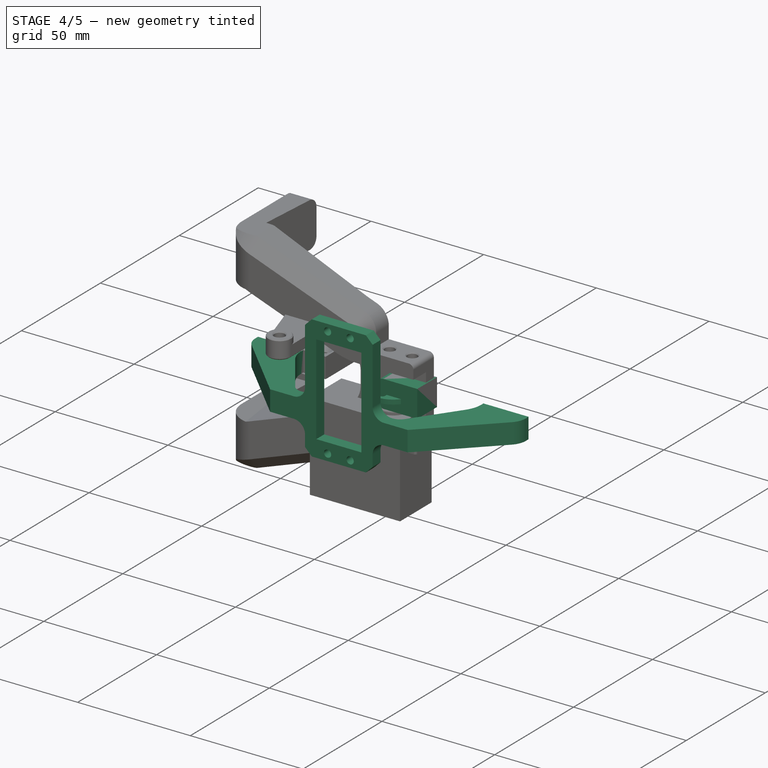
[diagram: stage 4 of 5 — iso view after this stage's code; geometry added in this stage tinted green]
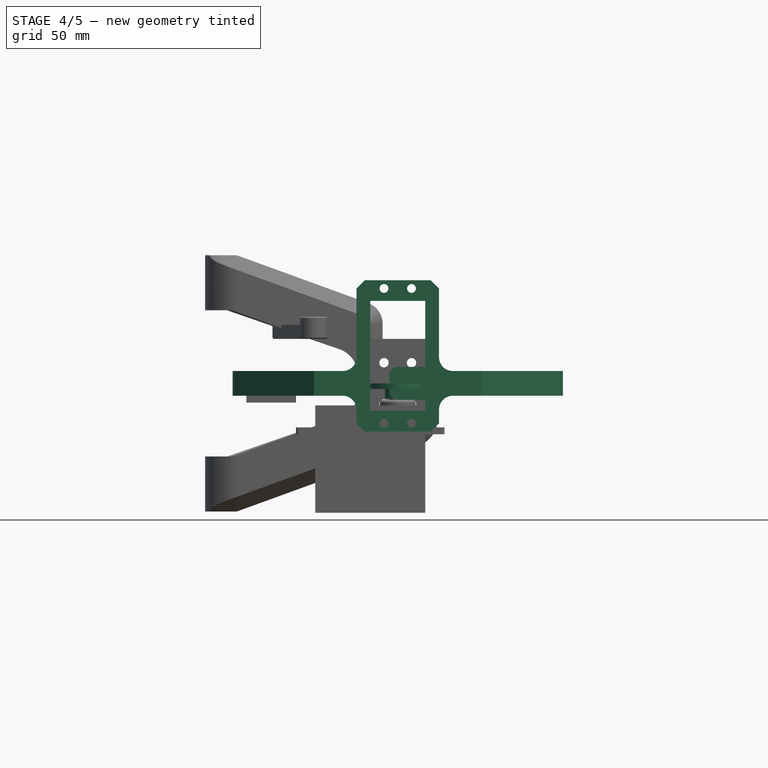
[diagram: stage 4 of 5 — front view after this stage's code; geometry added in this stage tinted green]
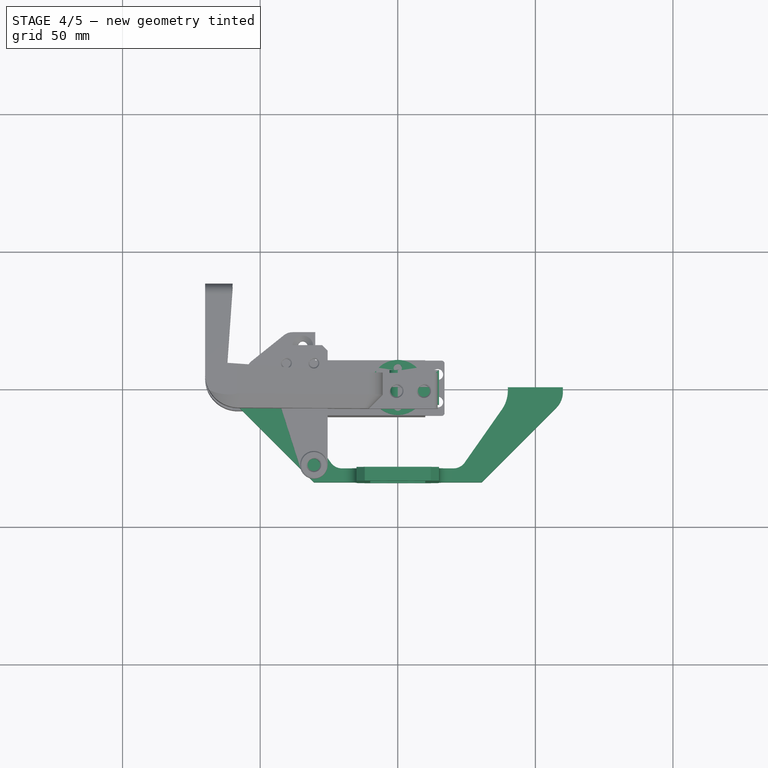
[diagram: stage 4 of 5 — top view after this stage's code; geometry added in this stage tinted green]
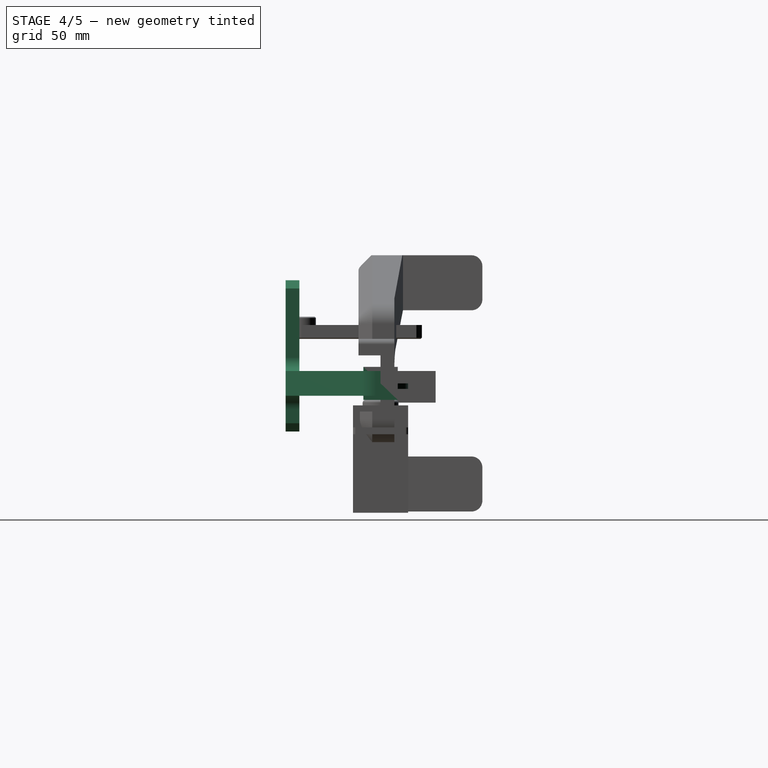
[diagram: stage 4 of 5 — right view after this stage's code; geometry added in this stage tinted green]
FEATURE [Sketcher::SketchObject] Sketch007
  ArcFitTolerance = 1e-06
  AttachmentSupport = -> [YZ_Plane006]
  ExternalBSplineMaxDegree = 5
  ExternalBSplineTolerance = 0.0001
  FullyConstrained = true
  InternalTolerance = 1e-06
  InvalidShape = false
  MakeInternals = false
  MapMode = 5
  Placement = pos=(0,0,0) rot=(0.57735,0.57735,0.57735;2.0944rad)
  Support = -> [YZ_Plane006]
  TreeRank = 139
  ValidateShape = false
  sketch-geometry (5):
    g0: LineSegment StartX=-6.25 StartY=-6 StartZ=0 EndX=-6.25 EndY=6 EndZ=0
    g1: LineSegment StartX=-6.25 StartY=6 StartZ=0 EndX=6.25 EndY=6 EndZ=0
    g2: LineSegment StartX=6.25 StartY=6 StartZ=0 EndX=6.25 EndY=-6 EndZ=0
    g3: LineSegment StartX=6.25 StartY=-6 StartZ=0 EndX=-6.25 EndY=-6 EndZ=0
    g4: GeomPoint [constr] X=0 Y=0 Z=0
  constraints (12):
    c: Coincident(g0,g1)
    c: Coincident(g1,g2)
    c: Coincident(g2,g3)
    c: Coincident(g3,g0)
    c: Horizontal(g1)
    c: Horizontal(g3)
    c: Vertical(g0)
    c: Vertical(g2)
    c: Symmetric(g1,g0,g4)
    c: Coincident(g4,g-1)
    c: DistanceX(g4,g1) = 6.25
    c: DistanceY(g2,g2) = 12
FEATURE [PartDesign::Pad] Pad004
  AddSubType = 0
  AlongSketchNormal = false
  AutoTaperInnerAngle = true
  CheckUpToFaceLimits = true
  ClaimChildren = false
  Direction = (1,-2e-16,3e-16)
  Fit = 0
  FitJoin = 0
  InnerFit = 0
  InnerFitJoin = 0
  InvalidShape = false
  Length = 15
  Length2 = 3
  Linearize = true
  NewSolid = false
  Profile = -> Sketch007
  ReferenceAxis = -> Sketch007 [N_Axis]
  Refine = true
  Suppress = false
  TaperInnerAngle = 0
  TaperInnerAngleRev = 0
  TreeRank = 140
  Type = 4
  ValidateShape = true
  _ProfileBasedVersion = 1
FEATURE [PartDesign::Fillet] Fillet006
  AddSubType = 0
  Base = -> Pad004 [Edge6,Edge11]
  BaseFeature = -> Pad004
  InvalidShape = false
  NewSolid = false
  Radius = 3
  Refine = true
  SupportTransform = false
  Suppress = false
  TreeRank = 141
  UseAllEdges = false
  ValidateShape = true
FEATURE [Sketcher::SketchObject] Sketch011
  ArcFitTolerance = 1e-06
  ExternalBSplineMaxDegree = 5
  ExternalBSplineTolerance = 0.0001
  FullyConstrained = true
  InternalTolerance = 1e-06
  InvalidShape = false
  MakeInternals = false
  MapMode = 5
  Placement = pos=(0,-8,0) rot=(1,0,0;1.5708rad)
  TreeRank = 152
  ValidateShape = false
  sketch-geometry (1):
    g0: Circle CenterX=0 CenterY=-14 CenterZ=0 NormalX=0 NormalY=0 NormalZ=1 AngleXU=0 Radius=2.2
  constraints (3):
    c: DistanceY(g0,g-1) = 14
    c: Diameter(g0) = 4.4
    c: PointOnObject(g0,g-2)
FEATURE [Sketcher::SketchObject] Sketch012
  ArcFitTolerance = 1e-06
  AttachmentSupport = -> [XY_Plane008]
  ExternalBSplineMaxDegree = 5
  ExternalBSplineTolerance = 0.0001
  FullyConstrained = true
  InternalTolerance = 1e-06
  InvalidShape = false
  MakeInternals = false
  MapMode = 5
  Support = -> [XY_Plane008]
  TreeRank = 198
  ValidateShape = false
  sketch-geometry (8):
    g0: LineSegment StartX=-60 StartY=0 StartZ=0 EndX=-60 EndY=-5 EndZ=0
    g1: LineSegment StartX=-60 StartY=-5 StartZ=0 EndX=-30.5 EndY=-34.5 EndZ=0
    g2: LineSegment StartX=-30.5 StartY=-34.5 StartZ=0 EndX=-10 EndY=-34.5 EndZ=0
    g3: LineSegment StartX=-10 StartY=-34.5 StartZ=0 EndX=-10 EndY=-29.5 EndZ=0
    g4: LineSegment StartX=-10 StartY=-29.5 StartZ=0 EndX=-22.8449 EndY=-29.5 EndZ=0
    g5: LineSegment StartX=-22.8449 StartY=-29.5 StartZ=0 EndX=-40 EndY=-5 EndZ=0
    g6: LineSegment StartX=-40 StartY=-5 StartZ=0 EndX=-40 EndY=0 EndZ=0
    g7: LineSegment StartX=-40 StartY=0 StartZ=0 EndX=-60 EndY=0 EndZ=0
  constraints (24):
    c: PointOnObject(g0,g-1)
    c: Vertical(g0)
    c: Coincident(g0,g1)
    c: Coincident(g1,g2)
    c: Horizontal(g2)
    c: Coincident(g2,g3)
    c: Vertical(g3)
    c: Coincident(g3,g4)
    c: Horizontal(g4)
    c: Coincident(g4,g5)
    c: Coincident(g5,g6)
    c: PointOnObject(g6,g-1)
    c: Vertical(g6)
    c: Coincident(g6,g7)
    c: Coincident(g7,g0)
    c: Equal(g0,g6)
    c: DistanceY(g3,g3) = 5
    c: DistanceY(g6,g6) = 5
    c: DistanceX(g3,g-1) = 10
    c: DistanceX(g0,g-1) = 60
    c: DistanceX(g7,g7) = 20
    c: DistanceY(g3,g-1) = 29.5
    c: Angle(g4,g5) = 2.18166
    c: Angle(g2,g1) = 2.35619
FEATURE [PartDesign::Pad] Pad005
  AddSubType = 0
  AlongSketchNormal = false
  AutoTaperInnerAngle = true
  CheckUpToFaceLimits = true
  ClaimChildren = false
  Direction = (0,0,1)
  Fit = 0
  FitJoin = 0
  InnerFit = 0
  InnerFitJoin = 0
  InvalidShape = false
  Length = 9
  Length2 = 10
  Linearize = true
  Midplane = true
  NewSolid = false
  Profile = -> Sketch012
  ReferenceAxis = -> Sketch012 [N_Axis]
  Refine = true
  Suppress = false
  TaperInnerAngle = 0
  TaperInnerAngleRev = 0
  TreeRank = 199
  Type = 0
  ValidateShape = true
  _ProfileBasedVersion = 1
FEATURE [Sketcher::SketchObject] Sketch013
  ArcFitTolerance = 1e-06
  AttachmentSupport = -> [Pad005]
  ExternalBSplineMaxDegree = 5
  ExternalBSplineTolerance = 0.0001
  FullyConstrained = true
  InternalTolerance = 1e-06
  InvalidShape = false
  MakeInternals = false
  MapMode = 5
  Placement = pos=(0,0,0) rot=(0,0.707107,0.707107;3.14159rad)
  Support = -> [Pad005]
  TreeRank = 200
  ValidateShape = false
  sketch-geometry (1):
    g0: Circle CenterX=50 CenterY=0 CenterZ=0 NormalX=0 NormalY=0 NormalZ=1 AngleXU=0 Radius=2.3
  constraints (3):
    c: PointOnObject(g0,g-1)
    c: DistanceX(g0) = 50
    c: Diameter(g0) = 4.6
FEATURE [PartDesign::Pocket] Pocket009
  AddSubType = 1
  AlongSketchNormal = false
  AutoTaperInnerAngle = true
  BaseFeature = -> Pad005
  CheckUpToFaceLimits = true
  ClaimChildren = false
  Direction = (0,-1,2e-16)
  Fit = 0
  FitJoin = 0
  InnerFit = 0
  InnerFitJoin = 0
  InvalidShape = false
  Length = 10
  Length2 = 10
  Linearize = true
  NewSolid = false
  Profile = -> Sketch013
  ReferenceAxis = -> Sketch013 [N_Axis]
  Refine = true
  Suppress = false
  TaperInnerAngle = 0
  TaperInnerAngleRev = 0
  TreeRank = 201
  Type = 0
  ValidateShape = true
  _ProfileBasedVersion = 1
  _Version = 1
FEATURE [PartDesign::Mirrored] Mirrored001
  AddSubType = 0
  BaseFeature = -> Pocket009
  CopyShape = false
  InvalidShape = false
  MirrorPlane = -> YZ_Plane008
  NewSolid = false
  OriginalSubs = -> [Pad005,Pocket009]
  Originals = -> [Pad005,Pocket009]
  ParallelTransform = true
  Refine = true
  SubTransform = true
  Suppress = false
  TreeRank = 202
  ValidateShape = true
  _Version = 3
FEATURE [Sketcher::SketchObject] Sketch014
  ArcFitTolerance = 1e-06
  AttachmentSupport = -> [Mirrored001]
  ExternalBSplineMaxDegree = 5
  ExternalBSplineTolerance = 0.0001
  FullyConstrained = true
  InternalTolerance = 1e-06
  InvalidShape = false
  MakeInternals = false
  MapMode = 5
  Placement = pos=(0,-29.5,0) rot=(0,0.707107,0.707107;3.14159rad)
  Support = -> [Mirrored001]
  TreeRank = 203
  ValidateShape = false
  sketch-geometry (19):
    g0: LineSegment StartX=10 StartY=30 StartZ=0 EndX=10 EndY=-10 EndZ=0
    g1: LineSegment StartX=10 StartY=-10 StartZ=0 EndX=-10 EndY=-10 EndZ=0
    g2: LineSegment StartX=-10 StartY=-10 StartZ=0 EndX=-10 EndY=30 EndZ=0
    g3: LineSegment StartX=-10 StartY=30 StartZ=0 EndX=10 EndY=30 EndZ=0
    g4: GeomPoint [constr] X=0 Y=10 Z=0
    g5: LineSegment StartX=15 StartY=-17.5 StartZ=0 EndX=15 EndY=37.5 EndZ=0
    g6: LineSegment StartX=15 StartY=37.5 StartZ=0 EndX=-15 EndY=37.5 EndZ=0
    g7: LineSegment StartX=-15 StartY=37.5 StartZ=0 EndX=-15 EndY=-17.5 EndZ=0
    g8: LineSegment StartX=-15 StartY=-17.5 StartZ=0 EndX=15 EndY=-17.5 EndZ=0
    g9: GeomPoint [constr] X=0 Y=10 Z=0
    g10: LineSegment [constr] StartX=5 StartY=-14.5 StartZ=0 EndX=5 EndY=34.5 EndZ=0
    g11: LineSegment [constr] StartX=5 StartY=34.5 StartZ=0 EndX=-5 EndY=34.5 EndZ=0
    g12: LineSegment [constr] StartX=-5 StartY=34.5 StartZ=0 EndX=-5 EndY=-14.5 EndZ=0
    g13: LineSegment [constr] StartX=-5 StartY=-14.5 StartZ=0 EndX=5 EndY=-14.5 EndZ=0
    g14: GeomPoint [constr] X=0 Y=10 Z=0
    g15: Circle CenterX=5 CenterY=34.5 CenterZ=0 NormalX=0 NormalY=0 NormalZ=1 AngleXU=0 Radius=1.6
    g16: Circle CenterX=-5 CenterY=34.5 CenterZ=0 NormalX=0 NormalY=0 NormalZ=1 AngleXU=0 Radius=1.6
    g17: Circle CenterX=5 CenterY=-14.5 CenterZ=0 NormalX=0 NormalY=0 NormalZ=1 AngleXU=0 Radius=1.6
    g18: Circle CenterX=-5 CenterY=-14.5 CenterZ=0 NormalX=0 NormalY=0 NormalZ=1 AngleXU=0 Radius=1.6
  constraints (45):
    c: Coincident(g0,g1)
    c: Coincident(g1,g2)
    c: Coincident(g2,g3)
    c: Coincident(g3,g0)
    c: Horizontal(g1)
    c: Horizontal(g3)
    c: Vertical(g0)
    c: Vertical(g2)
    c: Symmetric(g1,g0,g4)
    c: PointOnObject(g4,g-2)
    c: Coincident(g5,g6)
    c: Coincident(g6,g7)
    c: Coincident(g7,g8)
    c: Coincident(g8,g5)
    c: Horizontal(g6)
    c: Horizontal(g8)
    c: Vertical(g5)
    c: Vertical(g7)
    c: Symmetric(g6,g5,g9)
    c: Coincident(g9,g4)
    c: DistanceY(g2,g2) = 40
    c: DistanceY(g1,g-1) = 10
    c: DistanceX(g1,g1) = 20
    c: DistanceY(g7,g7) = 55
    c: DistanceX(g0,g5) = 5
    c: Coincident(g10,g11)
    c: Coincident(g11,g12)
    c: Coincident(g12,g13)
    c: Coincident(g13,g10)
    c: Horizontal(g11)
    c: Horizontal(g13)
    c: Vertical(g10)
    c: Vertical(g12)
    c: Symmetric(g11,g10,g14)
    c: Coincident(g14,g4)
    c: Coincident(g15,g10)
    c: Coincident(g16,g11)
    c: Coincident(g17,g10)
    c: Coincident(g18,g12)
    c: DistanceX(g13,g13) = 10
    c: DistanceY(g12,g12) = 49
    c: Equal(g16,g15)
    c: Equal(g16,g18)
    c: Equal(g16,g17)
    c: Diameter(g16) = 3.2
FEATURE [PartDesign::Pad] Pad006
  AddSubType = 0
  AlongSketchNormal = false
  AutoTaperInnerAngle = true
  BaseFeature = -> Mirrored001
  CheckUpToFaceLimits = true
  ClaimChildren = false
  Direction = (0,1,-2e-16)
  Fit = 0
  FitJoin = 0
  InnerFit = 0
  InnerFitJoin = 0
  InvalidShape = false
  Length = 5
  Length2 = 10
  Linearize = true
  NewSolid = false
  Profile = -> Sketch014
  ReferenceAxis = -> Sketch014 [N_Axis]
  Refine = true
  Reversed = true
  Suppress = false
  TaperInnerAngle = 0
  TaperInnerAngleRev = 0
  TreeRank = 204
  Type = 0
  ValidateShape = true
  _ProfileBasedVersion = 1
FEATURE [PartDesign::Fillet] Fillet007
  AddSubType = 0
  Base = -> Pad006 [Edge22,Edge61]
  BaseFeature = -> Pad006
  InvalidShape = false
  NewSolid = false
  Radius = 12
  Refine = true
  SupportTransform = false
  Suppress = false
  TreeRank = 205
  UseAllEdges = false
  ValidateShape = true
FEATURE [PartDesign::Fillet] Fillet008
  AddSubType = 0
  Base = -> Fillet007 [Edge27,Edge18]
  BaseFeature = -> Fillet007
  InvalidShape = false
  NewSolid = false
  Radius = 5
  Refine = true
  SupportTransform = false
  Suppress = false
  TreeRank = 206
  UseAllEdges = false
  ValidateShape = true
FEATURE [PartDesign::Fillet] Fillet009
  AddSubType = 0
  Base = -> Fillet008 [Edge95,Edge61]
  BaseFeature = -> Fillet008
  InvalidShape = false
  NewSolid = false
  Radius = 8
  Refine = true
  SupportTransform = false
  Suppress = false
  TreeRank = 207
  UseAllEdges = false
  ValidateShape = true
FEATURE [PartDesign::Chamfer] Chamfer009
  AddSubType = 0
  Angle = 45
  Base = -> Fillet009 [Edge70,Edge45,Edge90,Edge91]
  BaseFeature = -> Fillet009
  ChamferType = 0
  FlipDirection = false
  InvalidShape = false
  NewSolid = false
  Refine = true
  Size = 3
  Size2 = 1
  SupportTransform = false
  Suppress = false
  TreeRank = 208
  UseAllEdges = false
  ValidateShape = true
FEATURE [PartDesign::Fillet] Fillet010
  AddSubType = 0
  Base = -> Chamfer009 [Edge78,Edge55,Edge50,Edge27]
  BaseFeature = -> Chamfer009
  InvalidShape = false
  NewSolid = false
  Radius = 5
  Refine = true
  SupportTransform = false
  Suppress = false
  TreeRank = 209
  UseAllEdges = false
  ValidateShape = true
FEATURE [PartDesign::Body] Body004  label="SupportServoSerrage"
  AutoGroupSolids = false
  ClaimAllChildren = false
  ExportMode = 0
  Group = -> [Sketch012,Pad005,Sketch013,Pocket009,Mirrored001,Sketch014,Pad006,Fillet007,Fillet008,Fillet009,Chamfer009,Fillet010]
  InvalidShape = false
  Origin = -> Origin011
  Tip = -> Fillet010
  TreeRank = 185
  ValidateShape = false
  _ExportChildren = -> [Pad005,Pocket009,Mirrored001,Pad006,Fillet007,Fillet008,Fillet009,Chamfer009,Fillet010]
  _GroupVersion = 1
FEATURE [App::Part] Part006  label="ProtoV1"
  ClaimAllChildren = false
  ExportMode = 1
  Group = -> [Part003,Body004]
  Origin = -> Origin010
  TreeRank = 175
  _ExportChildren = -> [Part003,Body004]
  _GroupVersion = 1
FEATURE [Sketcher::SketchObject] Sketch088
  ArcFitTolerance = 0
  ExternalBSplineMaxDegree = 0
  ExternalBSplineTolerance = 0
  FixShape = 1
  FullyConstrained = true
  InternalTolerance = 1e-06
  InvalidShape = false
  MakeInternals = false
  MapMode = 5
  TreeRank = 0
  ValidateShape = false
  sketch-geometry (7):
    g0: Circle CenterX=0 CenterY=0 CenterZ=0 NormalX=0 NormalY=0 NormalZ=1 AngleXU=0 Radius=10
    g1: Circle CenterX=0 CenterY=7 CenterZ=0 NormalX=0 NormalY=0 NormalZ=1 AngleXU=0 Radius=1.5
    g2: Circle CenterX=7 CenterY=0 CenterZ=0 NormalX=0 NormalY=0 NormalZ=1 AngleXU=0 Radius=1.5
    g3: Circle CenterX=0 CenterY=-7 CenterZ=0 NormalX=0 NormalY=0 NormalZ=1 AngleXU=0 Radius=1.5
    g4: Circle CenterX=-7 CenterY=0 CenterZ=0 NormalX=0 NormalY=0 NormalZ=1 AngleXU=0 Radius=1.5
    g5: Circle [constr] CenterX=0 CenterY=0 CenterZ=0 NormalX=0 NormalY=0 NormalZ=1 AngleXU=0 Radius=7
    g6: Circle CenterX=0 CenterY=0 CenterZ=0 NormalX=0 NormalY=0 NormalZ=1 AngleXU=0 Radius=1.5
  constraints (18):
    c: Coincident(g0,g-1)
    c: Diameter(g0) = 20
    c: PointOnObject(g1,g-2)
    c: PointOnObject(g2,g-1)
    c: PointOnObject(g3,g-2)
    c: PointOnObject(g4,g-1)
    c: Equal(g4,g1)
    c: Equal(g1,g2)
    c: Equal(g2,g3)
    c: Diameter(g1) = 3
    c: Coincident(g5,g0)
    c: PointOnObject(g1,g5)
    c: PointOnObject(g2,g5)
    c: PointOnObject(g3,g5)
    c: PointOnObject(g4,g5)
    c: DistanceX(g4,g2) = 14
    c: Coincident(g6,g0)
    c: Equal(g2,g6)
FEATURE [PartDesign::Pad] Pad052
  AddSubType = 0
  AutoTaperInnerAngle = true
  CheckUpToFaceLimits = true
  ClaimChildren = false
  Direction = (0,0,1)
  Fit = 0
  FitJoin = 0
  FixShape = 1
  InnerFit = 0
  InnerFitJoin = 0
  InvalidShape = false
  Length = 2
  Length2 = 100
  NewSolid = false
  Profile = -> Sketch088
  Refine = true
  Reversed = true
  Suppress = false
  TaperInnerAngle = 0
  TaperInnerAngleRev = 0
  TreeRank = 0
  Type = 0
  ValidateShape = true
  _ProfileBasedVersion = 0
FEATURE [Sketcher::SketchObject] Sketch089
  ArcFitTolerance = 0
  ExternalBSplineMaxDegree = 0
  ExternalBSplineTolerance = 0
  FixShape = 1
  FullyConstrained = true
  InternalTolerance = 1e-06
  InvalidShape = false
  MakeInternals = false
  MapMode = 5
  TreeRank = 0
  ValidateShape = false
  sketch-geometry (2):
    g0: Circle CenterX=0 CenterY=0 CenterZ=0 NormalX=0 NormalY=0 NormalZ=1 AngleXU=0 Radius=4.7
    g1: Circle CenterX=0 CenterY=0 CenterZ=0 NormalX=0 NormalY=0 NormalZ=1 AngleXU=0 Radius=3
  constraints (4):
    c: Coincident(g0,g-1)
    c: Coincident(g1,g0)
    c: Diameter(g0) = 9.4
    c: Diameter(g1) = 6
FEATURE [PartDesign::Pad] Pad051
  AddSubType = 0
  AutoTaperInnerAngle = true
  BaseFeature = -> Pad052
  CheckUpToFaceLimits = true
  ClaimChildren = false
  Direction = (0,0,1)
  Fit = 0
  FitJoin = 0
  FixShape = 1
  InnerFit = 0
  InnerFitJoin = 0
  InvalidShape = false
  Length = 5.4
  Length2 = 100
  NewSolid = false
  Profile = -> Sketch089
  Refine = true
  Reversed = true
  Suppress = false
  TaperInnerAngle = 0
  TaperInnerAngleRev = 0
  TreeRank = 0
  Type = 0
  ValidateShape = true
  _ProfileBasedVersion = 0
FEATURE [PartDesign::Fillet] Fillet011
  AddSubType = 0
  Base = -> Pad096 [Edge61]
  BaseFeature = -> Pad096
  FixShape = 1
  InvalidShape = false
  NewSolid = false
  Placement = pos=(0,0,0) rot=(1,0,0;1.5708rad)
  Radius = 1
  Refine = true
  SupportTransform = false
  Suppress = false
  TreeRank = 0
  UseAllEdges = false
  ValidateShape = true
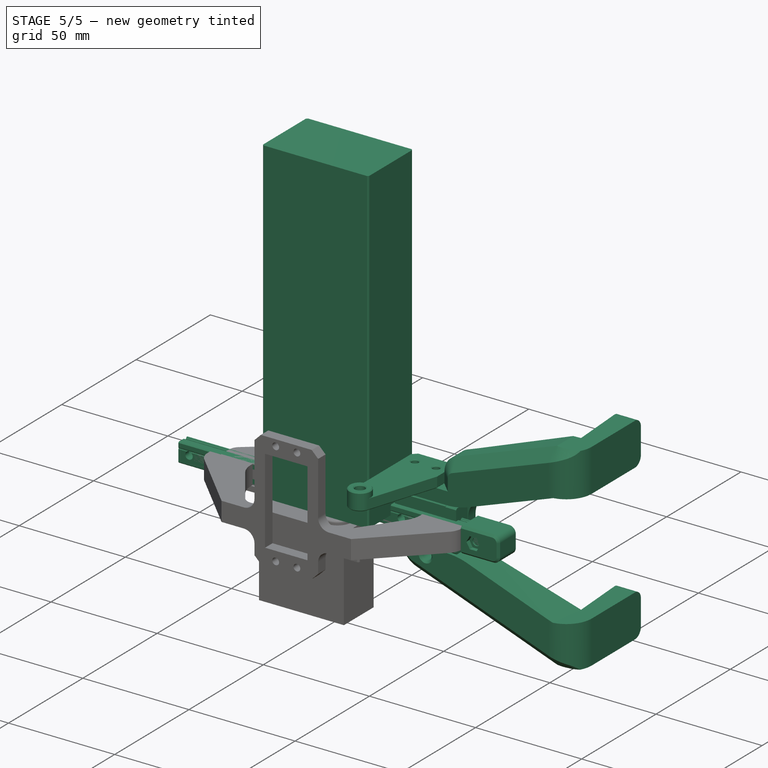
[diagram: stage 5 of 5 — iso view after this stage's code; geometry added in this stage tinted green]
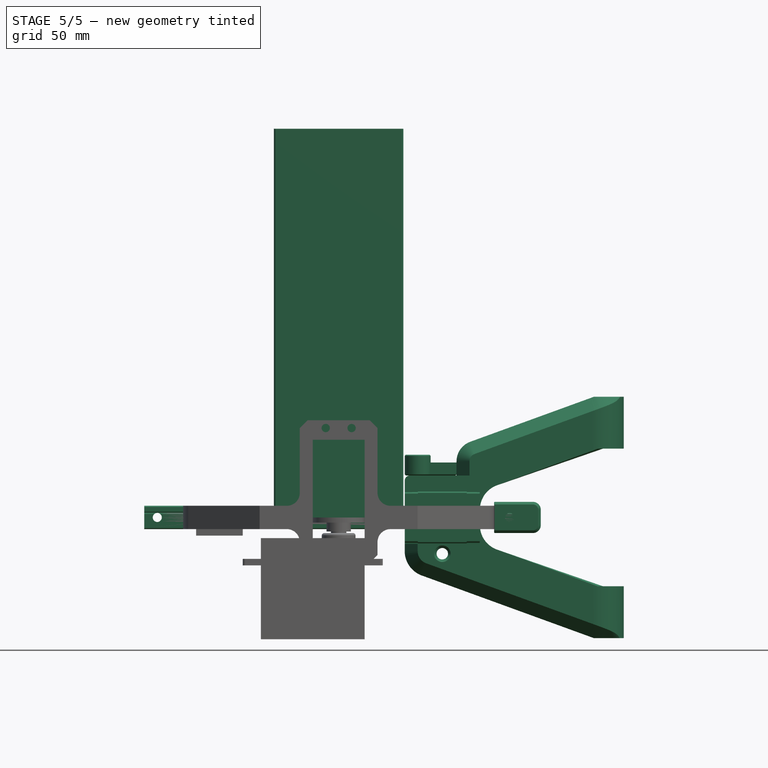
[diagram: stage 5 of 5 — front view after this stage's code; geometry added in this stage tinted green]
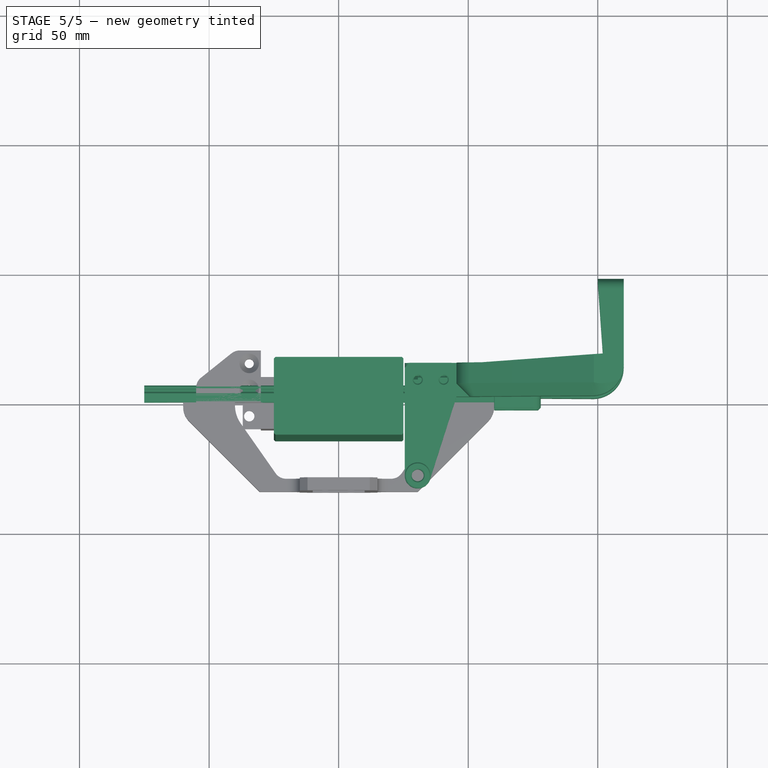
[diagram: stage 5 of 5 — top view after this stage's code; geometry added in this stage tinted green]
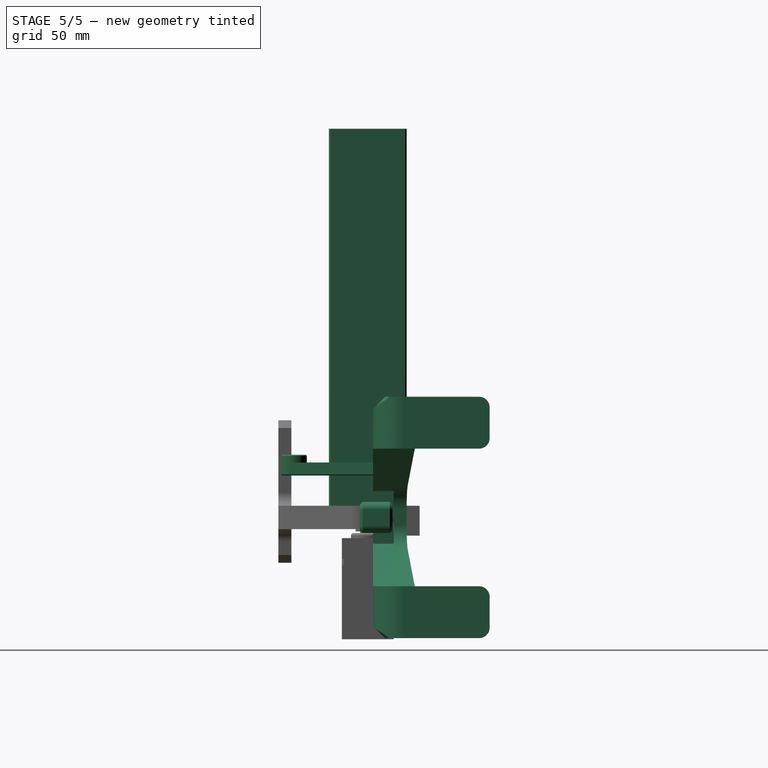
[diagram: stage 5 of 5 — right view after this stage's code; geometry added in this stage tinted green]
FEATURE [Part::Feature] Solid  label="mgn9c"
  InvalidShape = false
  Placement = pos=(0,2,0) rot=(0,0,1;0rad)
  TreeRank = 1
  ValidateShape = false
  shape: bbox 28.92 x 8.018 x 20.02 mm, 85 faces (baked)
FEATURE [Part::Feature] Solid001  label="mgnr9"
  InvalidShape = false
  TreeRank = 24
  ValidateShape = false
  shape: bbox 75 x 6.5 x 9 mm, 60 faces (baked)
FEATURE [PartDesign::SubShapeBinder] Pad_Profile  label="Pad_Profile(mgnr9)"
  BindCopyOnChange = 0
  BindMode = 0
  ClaimChildren = false
  Context = -> Body [Pad.Pad_Profile.]
  EdgeTolerance = 1e-06
  FillStyle = 0
  Fuse = false
  InvalidShape = false
  MakeFace = true
  MergeEdges = true
  OffsetFill = false
  OffsetIntersection = false
  OffsetJoinType = 0
  OffsetOpenResult = false
  Outline = false
  PartialLoad = false
  Relative = true
  SplitEdges = false
  Support = -> [Solid001[Face15]]
  TightBound = false
  TreeRank = 14
  ValidateShape = false
  _Version = 8
FEATURE [PartDesign::Pad] Pad
  AddSubType = 0
  AlongSketchNormal = false
  AutoTaperInnerAngle = true
  CheckUpToFaceLimits = true
  ClaimChildren = false
  Direction = (1,0,0)
  Fit = 0
  FitJoin = 0
  InnerFit = 0
  InnerFitJoin = 0
  InvalidShape = false
  Length = 150
  Length2 = 10
  Linearize = true
  Midplane = true
  NewSolid = false
  Profile = -> Pad_Profile
  Refine = true
  Suppress = false
  TaperInnerAngle = 0
  TaperInnerAngleRev = 0
  TreeRank = 15
  Type = 0
  ValidateShape = true
  _ProfileBasedVersion = 1
FEATURE [Sketcher::SketchObject] Sketch
  ArcFitTolerance = 1e-06
  AttachmentSupport = -> [XZ_Plane]
  ExternalBSplineMaxDegree = 5
  ExternalBSplineTolerance = 0.0001
  FullyConstrained = true
  InternalTolerance = 1e-06
  InvalidShape = false
  MakeInternals = false
  MapMode = 5
  Placement = pos=(0,0,0) rot=(1,0,0;1.5708rad)
  Support = -> [XZ_Plane]
  TreeRank = 16
  ValidateShape = false
  sketch-geometry (10):
    g0: Circle CenterX=-10 CenterY=0 CenterZ=0 NormalX=0 NormalY=0 NormalZ=1 AngleXU=0 Radius=1.75
    g1: Circle CenterX=10 CenterY=0 CenterZ=0 NormalX=0 NormalY=0 NormalZ=1 AngleXU=0 Radius=1.75
    g2: Circle CenterX=30 CenterY=0 CenterZ=0 NormalX=0 NormalY=0 NormalZ=1 AngleXU=0 Radius=1.75
    g3: Circle CenterX=50 CenterY=0 CenterZ=0 NormalX=0 NormalY=0 NormalZ=1 AngleXU=0 Radius=1.75
    g4: Circle CenterX=70 CenterY=0 CenterZ=0 NormalX=0 NormalY=0 NormalZ=1 AngleXU=0 Radius=1.75
    g5: Circle CenterX=90 CenterY=0 CenterZ=0 NormalX=0 NormalY=0 NormalZ=1 AngleXU=0 Radius=1.75
    g6: Circle CenterX=-30 CenterY=0 CenterZ=0 NormalX=0 NormalY=0 NormalZ=1 AngleXU=0 Radius=1.75
    g7: Circle CenterX=-50 CenterY=0 CenterZ=0 NormalX=0 NormalY=0 NormalZ=1 AngleXU=0 Radius=1.75
    g8: Circle CenterX=-70 CenterY=0 CenterZ=0 NormalX=0 NormalY=0 NormalZ=1 AngleXU=0 Radius=1.75
    g9: Circle CenterX=-90 CenterY=0 CenterZ=0 NormalX=0 NormalY=0 NormalZ=1 AngleXU=0 Radius=1.75
  constraints (25):
    c: PointOnObject(g0,g-1)
    c: Diameter(g0) = 3.5
    c: DistanceX(g0,g-1) = 10
    c: PointOnObject(g2,g-1)
    c: PointOnObject(g3,g-1)
    c: PointOnObject(g4,g-1)
    c: PointOnObject(g5,g-1)
    c: Equal(g9,g8)
    c: Equal(g8,g7)
    c: Equal(g7,g6)
    c: Equal(g6,g0)
    c: Equal(g0,g1)
    c: Equal(g1,g2)
    c: Equal(g2,g3)
    c: Equal(g3,g4)
    c: Equal(g4,g5)
    c: DistanceX(g6,g0) = 20
    c: DistanceX(g7,g6) = 20
    c: DistanceX(g8,g7) = 20
    c: DistanceX(g9,g8) = 20
    c: Symmetric(g0,g1,g-1)
    c: Symmetric(g6,g2,g-1)
    c: Symmetric(g3,g7,g-1)
    c: Symmetric(g4,g8,g-1)
    c: Symmetric(g5,g9,g-1)
FEATURE [PartDesign::Pocket] Pocket
  AddSubType = 1
  AlongSketchNormal = false
  AutoTaperInnerAngle = true
  BaseFeature = -> Pad
  CheckUpToFaceLimits = true
  ClaimChildren = false
  Direction = (0,1,-2e-16)
  Fit = 0
  FitJoin = 0
  InnerFit = 0
  InnerFitJoin = 0
  InvalidShape = false
  Length = 9
  Length2 = 10
  Linearize = true
  NewSolid = false
  Profile = -> Sketch
  ReferenceAxis = -> Sketch [N_Axis]
  Refine = true
  Suppress = false
  TaperInnerAngle = 0
  TaperInnerAngleRev = 0
  TreeRank = 17
  Type = 0
  ValidateShape = true
  _ProfileBasedVersion = 1
  _Version = 1
FEATURE [Sketcher::SketchObject] Sketch001
  ArcFitTolerance = 1e-06
  AttachmentSupport = -> [Pocket]
  ExternalBSplineMaxDegree = 5
  ExternalBSplineTolerance = 0.0001
  FullyConstrained = false
  InternalTolerance = 1e-06
  InvalidShape = false
  MakeInternals = false
  MapMode = 5
  Placement = pos=(0,6.5,2.8e-15) rot=(0,0.707107,0.707107;3.14159rad)
  Support = -> [Pocket]
  TreeRank = 18
  ValidateShape = false
  sketch-geometry (1):
    g0: Circle CenterX=-90 CenterY=0 CenterZ=0 NormalX=0 NormalY=0 NormalZ=1 AngleXU=0 Radius=2.85
  constraints (2):
    c: Diameter(g0) = 5.7
    c: DistanceX(g0,g-1) = 90
FEATURE [PartDesign::Pocket] Pocket001
  AddSubType = 1
  AlongSketchNormal = false
  AutoTaperInnerAngle = true
  BaseFeature = -> Pocket
  CheckUpToFaceLimits = true
  ClaimChildren = false
  Direction = (0,-1,-4e-16)
  Fit = 0
  FitJoin = 0
  InnerFit = 0
  InnerFitJoin = 0
  InvalidShape = false
  Length = 4
  Length2 = 10
  Linearize = true
  NewSolid = false
  Profile = -> Sketch001
  ReferenceAxis = -> Sketch001 [N_Axis]
  Refine = true
  Suppress = false
  TaperInnerAngle = 0
  TaperInnerAngleRev = 0
  TreeRank = 19
  Type = 0
  ValidateShape = true
  _ProfileBasedVersion = 1
  _Version = 1
FEATURE [PartDesign::LinearPattern] LinearPattern
  AddSubType = 0
  BaseFeature = -> Pocket001
  CopyShape = false
  Direction = -> Sketch001 [H_Axis]
  InvalidShape = false
  Length = 180
  NewSolid = false
  Occurrences = 10
  OriginalSubs = -> [Pocket001]
  Originals = -> [Pocket001]
  ParallelTransform = true
  Refine = true
  SubTransform = true
  Suppress = false
  TreeRank = 20
  ValidateShape = true
  _Version = 3
FEATURE [PartDesign::Body] Body  label="Rail MGN9 - 150mm"
  AutoGroupSolids = false
  ClaimAllChildren = false
  ExportMode = 0
  Group = -> [Pad,Pad_Profile,Sketch,Pocket,Sketch001,Pocket001,LinearPattern]
  InvalidShape = false
  Origin = -> Origin
  Tip = -> LinearPattern
  TreeRank = 12
  ValidateShape = false
  _ExportChildren = -> [Pad,Pocket,Pocket001,LinearPattern]
  _GroupVersion = 1
FEATURE [Sketcher::SketchObject] Sketch002
  ArcFitTolerance = 1e-06
  AttachmentSupport = -> [XY_Plane001]
  ExternalBSplineMaxDegree = 5
  ExternalBSplineTolerance = 0.0001
  FullyConstrained = true
  InternalTolerance = 1e-06
  InvalidShape = false
  MakeInternals = false
  MapMode = 5
  Support = -> [XY_Plane001]
  TreeRank = 39
  ValidateShape = false
  sketch-geometry (5):
    g0: LineSegment StartX=-25 StartY=-15 StartZ=0 EndX=-25 EndY=15 EndZ=0
    g1: LineSegment StartX=-25 StartY=15 StartZ=0 EndX=25 EndY=15 EndZ=0
    g2: LineSegment StartX=25 StartY=15 StartZ=0 EndX=25 EndY=-15 EndZ=0
    g3: LineSegment StartX=25 StartY=-15 StartZ=0 EndX=-25 EndY=-15 EndZ=0
    g4: GeomPoint [constr] X=0 Y=0 Z=0
  constraints (12):
    c: Coincident(g0,g1)
    c: Coincident(g1,g2)
    c: Coincident(g2,g3)
    c: Coincident(g3,g0)
    c: Horizontal(g1)
    c: Horizontal(g3)
    c: Vertical(g0)
    c: Vertical(g2)
    c: Symmetric(g1,g0,g4)
    c: Coincident(g4,g-1)
    c: DistanceY(g2,g2) = 30
    c: DistanceX(g1,g1) = 50
FEATURE [PartDesign::Pad] Pad001
  AddSubType = 0
  AlongSketchNormal = false
  AutoTaperInnerAngle = true
  CheckUpToFaceLimits = true
  ClaimChildren = false
  Direction = (0,0,1)
  Fit = 0
  FitJoin = 0
  InnerFit = 0
  InnerFitJoin = 0
  InvalidShape = false
  Length = 150
  Length2 = 10
  Linearize = true
  NewSolid = false
  Profile = -> Sketch002
  ReferenceAxis = -> Sketch002 [N_Axis]
  Refine = true
  Suppress = false
  TaperInnerAngle = 0
  TaperInnerAngleRev = 0
  TreeRank = 40
  Type = 0
  ValidateShape = true
  _ProfileBasedVersion = 1
FEATURE [PartDesign::Chamfer] Chamfer
  AddSubType = 0
  Angle = 45
  Base = -> Pad001 [Edge2,Edge1,Edge8,Edge5]
  BaseFeature = -> Pad001
  ChamferType = 0
  FlipDirection = false
  InvalidShape = false
  NewSolid = false
  Refine = true
  Size = 0.6
  Size2 = 1
  SupportTransform = false
  Suppress = false
  TreeRank = 41
  UseAllEdges = false
  ValidateShape = true
FEATURE [Sketcher::SketchObject] Sketch008
  ArcFitTolerance = 1e-06
  AttachmentSupport = -> [YZ_Plane006]
  ExternalBSplineMaxDegree = 5
  ExternalBSplineTolerance = 0.0001
  FullyConstrained = true
  InternalTolerance = 1e-06
  InvalidShape = false
  MakeInternals = false
  MapMode = 5
  Placement = pos=(0,0,0) rot=(0.57735,0.57735,0.57735;2.0944rad)
  Support = -> [YZ_Plane006]
  TreeRank = 142
  ValidateShape = false
  sketch-geometry (5):
    g0: LineSegment StartX=-3.45 StartY=-4.7 StartZ=0 EndX=-3.45 EndY=4.7 EndZ=0
    g1: LineSegment StartX=-3.45 StartY=4.7 StartZ=0 EndX=3.45 EndY=4.7 EndZ=0
    g2: LineSegment StartX=3.45 StartY=4.7 StartZ=0 EndX=3.45 EndY=-4.7 EndZ=0
    g3: LineSegment StartX=3.45 StartY=-4.7 StartZ=0 EndX=-3.45 EndY=-4.7 EndZ=0
    g4: GeomPoint [constr] X=0 Y=0 Z=0
  constraints (12):
    c: Coincident(g0,g1)
    c: Coincident(g1,g2)
    c: Coincident(g2,g3)
    c: Coincident(g3,g0)
    c: Horizontal(g1)
    c: Horizontal(g3)
    c: Vertical(g0)
    c: Vertical(g2)
    c: Symmetric(g1,g0,g4)
    c: Coincident(g4,g-1)
    c: DistanceX(g1,g1) = 6.9
    c: DistanceY(g2,g2) = 9.4
FEATURE [PartDesign::Pocket] Pocket005
  AddSubType = 1
  AlongSketchNormal = false
  AutoTaperInnerAngle = true
  BaseFeature = -> Fillet006
  CheckUpToFaceLimits = true
  ClaimChildren = false
  Direction = (-1,2e-16,-3e-16)
  Fit = 0
  FitJoin = 0
  InnerFit = 0
  InnerFitJoin = 0
  InvalidShape = false
  Length = 22
  Length2 = 10
  Linearize = true
  NewSolid = false
  Profile = -> Sketch008
  ReferenceAxis = -> Sketch008 [N_Axis]
  Refine = true
  Reversed = true
  Suppress = false
  TaperInnerAngle = 0
  TaperInnerAngleRev = 0
  TreeRank = 143
  Type = 0
  ValidateShape = true
  _ProfileBasedVersion = 1
  _Version = 1
FEATURE [Sketcher::SketchObject] Sketch009
  ArcFitTolerance = 1e-06
  AttachmentSupport = -> [XZ_Plane006]
  ExternalBSplineMaxDegree = 5
  ExternalBSplineTolerance = 0.0001
  FullyConstrained = true
  InternalTolerance = 1e-06
  InvalidShape = false
  MakeInternals = false
  MapMode = 5
  Placement = pos=(0,0,0) rot=(1,0,0;1.5708rad)
  Support = -> [XZ_Plane006]
  TreeRank = 144
  ValidateShape = false
  sketch-geometry (1):
    g0: Circle CenterX=9 CenterY=0 CenterZ=0 NormalX=0 NormalY=0 NormalZ=1 AngleXU=0 Radius=1.75
  constraints (3):
    c: PointOnObject(g0,g-1)
    c: Diameter(g0) = 3.5
    c: DistanceX(g-1,g0) = 9
FEATURE [PartDesign::Pocket] Pocket006
  AddSubType = 1
  AlongSketchNormal = false
  AutoTaperInnerAngle = true
  BaseFeature = -> Pocket005
  CheckUpToFaceLimits = true
  ClaimChildren = false
  Direction = (0,1,-2e-16)
  Fit = 0
  FitJoin = 0
  InnerFit = 0
  InnerFitJoin = 0
  InvalidShape = false
  Length = 24
  Length2 = 10
  Linearize = true
  Midplane = true
  NewSolid = false
  Profile = -> Sketch009
  ReferenceAxis = -> Sketch009 [N_Axis]
  Refine = true
  Suppress = false
  TaperInnerAngle = 0
  TaperInnerAngleRev = 0
  TreeRank = 145
  Type = 0
  ValidateShape = true
  _ProfileBasedVersion = 1
  _Version = 1
FEATURE [PartDesign::Chamfer] Chamfer005
  AddSubType = 0
  Angle = 45
  Base = -> Pocket006 [Edge5,Edge22]
  BaseFeature = -> Pocket006
  ChamferType = 0
  FlipDirection = false
  InvalidShape = false
  NewSolid = false
  Refine = true
  Size = 1
  Size2 = 1
  SupportTransform = false
  Suppress = false
  TreeRank = 146
  UseAllEdges = false
  ValidateShape = true
FEATURE [PartDesign::Chamfer] Chamfer006
  AddSubType = 0
  Angle = 45
  Base = -> Chamfer005 [Face2,Edge29,Edge49]
  BaseFeature = -> Chamfer005
  ChamferType = 0
  FlipDirection = false
  InvalidShape = false
  NewSolid = false
  Refine = true
  Size = 0.2
  Size2 = 1
  SupportTransform = false
  Suppress = false
  TreeRank = 147
  UseAllEdges = false
  ValidateShape = true
FEATURE [PartDesign::Chamfer] Chamfer007
  AddSubType = 0
  Angle = 45
  Base = -> Chamfer006 [Edge77]
  BaseFeature = -> Chamfer006
  ChamferType = 0
  FlipDirection = false
  InvalidShape = false
  NewSolid = false
  Refine = true
  Size = 2
  Size2 = 1
  SupportTransform = false
  Suppress = false
  TreeRank = 149
  UseAllEdges = false
  ValidateShape = true
FEATURE [Sketcher::SketchObject] Sketch010
  ArcFitTolerance = 1e-06
  AttachmentSupport = -> [Chamfer007]
  ExternalBSplineMaxDegree = 5
  ExternalBSplineTolerance = 0.0001
  ExternalGeometry = -> [Chamfer007]
  FullyConstrained = true
  InternalTolerance = 1e-06
  InvalidShape = false
  MakeInternals = false
  MapMode = 5
  Placement = pos=(-1.4e-15,-6.25,1.4e-15) rot=(1,0,0;1.5708rad)
  Support = -> [Chamfer007]
  TreeRank = 150
  ValidateShape = false
  sketch-geometry (7):
    g0: LineSegment StartX=12.2043 StartY=0 StartZ=0 EndX=10.6021 EndY=2.775 EndZ=0
    g1: LineSegment StartX=10.6021 StartY=2.775 StartZ=0 EndX=7.39785 EndY=2.775 EndZ=0
    g2: LineSegment StartX=7.39785 StartY=2.775 StartZ=0 EndX=5.79571 EndY=-2.238e-13 EndZ=0
    g3: LineSegment StartX=5.79571 StartY=-2.237e-13 StartZ=0 EndX=7.39785 EndY=-2.775 EndZ=0
    g4: LineSegment StartX=7.39785 StartY=-2.775 StartZ=0 EndX=10.6021 EndY=-2.775 EndZ=0
    g5: LineSegment StartX=10.6021 StartY=-2.775 StartZ=0 EndX=12.2043 EndY=0 EndZ=0
    g6: Circle [constr] CenterX=9 CenterY=0 CenterZ=0 NormalX=0 NormalY=0 NormalZ=1 AngleXU=0 Radius=3.20429
  constraints (16):
    c: Coincident(g0,g1)
    c: Coincident(g1,g2)
    c: Coincident(g2,g3)
    c: Coincident(g3,g4)
    c: Coincident(g4,g5)
    c: Coincident(g5,g0)
    c: Equal(g0, g1-g5) x5
    c: PointOnObject(g0,g6)
    c: PointOnObject(g1,g6)
    c: PointOnObject(g2,g6)
    c: PointOnObject(g3,g6)
    c: PointOnObject(g4,g6)
    c: PointOnObject(g5,g6)
    c: Coincident(g6,g-3)
    c: PointOnObject(g5,g-1)
    c: DistanceY(g4,g0) = 5.55
FEATURE [PartDesign::Pocket] Pocket007
  AddSubType = 1
  AlongSketchNormal = false
  AutoTaperInnerAngle = true
  BaseFeature = -> Chamfer007
  CheckUpToFaceLimits = true
  ClaimChildren = false
  Direction = (2e-16,1,-2e-16)
  Fit = 0
  FitJoin = 0
  InnerFit = 0
  InnerFitJoin = 0
  InvalidShape = false
  Length = 2
  Length2 = 10
  Linearize = true
  NewSolid = false
  Profile = -> Sketch010
  ReferenceAxis = -> Sketch010 [N_Axis]
  Refine = true
  Suppress = false
  TaperInnerAngle = 0
  TaperInnerAngleRev = 0
  TreeRank = 151
  Type = 0
  ValidateShape = true
  _ProfileBasedVersion = 1
  _Version = 1
FEATURE [PartDesign::Body] Body003  label="Butée"
  AutoGroupSolids = false
  ClaimAllChildren = false
  ExportMode = 0
  Group = -> [Sketch007,Pad004,Fillet006,Sketch008,Pocket005,Sketch009,Pocket006,Chamfer005,Chamfer006,Chamfer007,Sketch010,Pocket007]
  InvalidShape = false
  Origin = -> Origin007
  Placement = pos=(-75,3.25,0) rot=(0,0,1;0rad)
  Tip = -> Pocket007
  TreeRank = 138
  ValidateShape = false
  _ExportChildren = -> [Pad004,Fillet006,Pocket005,Pocket006,Chamfer005,Chamfer006,Chamfer007,Pocket007]
  _GroupVersion = 1
FEATURE [Part::Mirroring] Part__Mirroring001  label="Butée (Mirror #2)"
  Base = (0,0,0)
  InvalidShape = false
  Normal = (1,0,0)
  Source = -> Body003
  TreeRank = 148
  ValidateShape = false
FEATURE [PartDesign::Body] Body045  label="ExtensionJaw"
  AutoGroupSolids = false
  ClaimAllChildren = false
  ExportMode = 0
  Group = -> [Import,Sketch243,Pad100,Sketch244,Pad101,Chamfer034,Chamfer035]
  InvalidShape = false
  Origin = -> Origin070
  Tip = -> Chamfer035
  TreeRank = 296
  ValidateShape = false
  _ExportChildren = -> [Import,Pad100,Pad101,Chamfer034,Chamfer035]
  _GroupVersion = 1
FEATURE [App::Part] Part  label="GripperLeft"
  ClaimAllChildren = false
  ExportMode = 1
  Group = -> [Part002,Body045]
  Origin = -> Origin001
  TreeRank = 23
  _ExportChildren = -> [Part002,Body045]
  _GroupVersion = 1
FEATURE [Part::Mirroring] Part__Mirroring  label="Part (Mirror #1)"
  Base = (0,0,0)
  InvalidShape = false
  Normal = (1,0,0)
  Source = -> Part
  TreeRank = 25
  ValidateShape = false
FEATURE [App::Part] Part005  label="Gripper"
  ClaimAllChildren = false
  ExportMode = 1
  Group = -> [Body,Solid001,Part__Mirroring,Part001,Part__Mirroring001,Part,Body003,Part006,Part018]
  Origin = -> Origin009
  Placement = pos=(0,10,55) rot=(0,0,1;0rad)
  TreeRank = 172
  _ExportChildren = -> [Body,Solid001,Part__Mirroring,Part001,Part__Mirroring001,Part006,Part018]
  _GroupVersion = 1
FEATURE [App::Part] Part004  label="EnsembleGripperNoisettes"
  ClaimAllChildren = false
  ExportMode = 1
  Group = -> [Part005]
  Origin = -> Origin008
  TreeRank = 157
  _ExportChildren = -> [Part005]
  _GroupVersion = 1
FEATURE [Sketcher::SketchObject] Sketch245  label="Squelette"
  ArcFitTolerance = 1e-06
  ExternalBSplineMaxDegree = 5
  ExternalBSplineTolerance = 0.0001
  FullyConstrained = false
  InternalTolerance = 1e-06
  InvalidShape = false
  MakeInternals = false
  Placement = pos=(0,0,0) rot=(0.57735,0.57735,0.57735;2.0944rad)
  TreeRank = 319
  ValidateShape = false
  sketch-geometry (7):
    g0: LineSegment StartX=-0.935598 StartY=11.8334 StartZ=0 EndX=-0.907755 EndY=34.5434 EndZ=0
    g1: LineSegment StartX=-0.907755 StartY=34.5434 StartZ=0 EndX=-26.177 EndY=66.2188 EndZ=0
    g2: LineSegment StartX=-29.608 StartY=3.30996 StartZ=0 EndX=-52.1006 EndY=47.3709 EndZ=0
    g3: LineSegment StartX=-5.93496 StartY=0 StartZ=0 EndX=-24.6728 EndY=35.0451 EndZ=0
    g4: LineSegment StartX=-24.6728 StartY=35.0451 StartZ=0 EndX=-26.177 EndY=66.2188 EndZ=0
    g5: LineSegment StartX=-52.1006 StartY=47.3709 StartZ=0 EndX=-24.6728 EndY=35.0451 EndZ=0
    g6: LineSegment StartX=-24.6728 StartY=35.0451 StartZ=0 EndX=-0.935598 EndY=11.8334 EndZ=0
  constraints (20):
    c: Coincident(g1,g0)
    c: DistanceX(g2) = -29.608
    c: DistanceY(g2) = 3.30996
    c: Distance(g0) = 22.71
    c: Distance(g2) = 49.47
    c: PointOnObject(g3,g-1)
    c: Coincident(g4,g3)
    c: Coincident(g4,g1)
    c: DistanceX(g3) = -5.93496
    c: Distance(g3) = 39.74
    c: Angle(g3,g4) = 2.6988
    c: Distance(g4) = 31.21
    c: Distance(g1) = 40.52
    c: Coincident(g5,g2)
    c: Coincident(g5,g3)
    c: Coincident(g6,g3)
    c: Coincident(g6,g0)
    c: Angle(g5,g6) = 2.78973
    c: Distance(g5) = 30.07
    c: Distance(g6) = 33.2
FEATURE [Image::ImagePlane] GN_7247_Charnière_articulée_drawing  label="GN 7247-Charnière articulée-drawing"
  Placement = pos=(7.1e-15,-80,-32) rot=(0.57735,0.57735,0.57735;2.0944rad)
  TreeRank = 320
  XSize = 264.55
  YSize = 264.55
FEATURE [App::Part] Part020  label="Part"
  ClaimAllChildren = false
  ExportMode = 1
  Group = -> [Sketch245,GN_7247_Charnière_articulée_drawing]
  Origin = -> Origin071
  TreeRank = 306
  _ExportChildren = -> [Sketch245,GN_7247_Charnière_articulée_drawing]
  _GroupVersion = 1
FEATURE [App::Part] Part019  label="GripperCaisses"
  ClaimAllChildren = false
  ExportMode = 1
  Group = -> [Part004,Part016,Part020]
  Origin = -> Origin069
  TreeRank = 277
  _ExportChildren = -> [Part004,Part016,Part020]
  _GroupVersion = 1

RESOLVED EXTERNAL PARTS (link-assembly join: the EXTERNAL_REF files above that resolve inside this repo's crawl, each included once):
---- part ../holonomic-base.FCStd = doc fcstd_e8dfe22405e7 ----
FCSTD DOCUMENT  (FreeCAD 2024.1006R14555 (Git shallow))
Label: holonomic-base
License: All rights reserved
LicenseURL: http://en.wikipedia.org/wiki/All_rights_reserved
objects: App::Link×19, App::Part×1
EXTERNAL_REF file=electronical-parts/otos-sensor.FCStd obj=Part006
EXTERNAL_REF file=mechanical-parts/column-motor.FCStd obj=Part001
EXTERNAL_REF file=mechanical-parts/column-motor.FCStd obj=Body019
EXTERNAL_REF file=mechanical-parts/column-motor.FCStd obj=Part020
EXTERNAL_REF file=mechanical-parts/column-motor.FCStd obj=Part022
EXTERNAL_REF file=mechanical-parts/column-motor.FCStd obj=Part014
EXTERNAL_REF file=mechanical-parts/column-motor.FCStd obj=Part025
EXTERNAL_REF file=mechanical-parts/column-motor.FCStd obj=Part031
EXTERNAL_REF file=mechanical-parts/column-motor.FCStd obj=Part033
EXTERNAL_REF file=electronical-parts/beacon_assembled.FCStd obj=Part007
EXTERNAL_REF file=mechanical-parts/column-motor.FCStd obj=Part015
EXTERNAL_REF file=mechanical-parts/column-motor.FCStd obj=Part046
EXTERNAL_REF file=mechanical-parts/column-motor.FCStd obj=Part044
EXTERNAL_REF file=mechanical-parts/column-motor.FCStd obj=Part039
EXTERNAL_REF file=mechanical-parts/column-motor.FCStd obj=Part036
EXTERNAL_REF file=mechanical-parts/column-motor.FCStd obj=Part048
EXTERNAL_REF file=mechanical-parts/column-motor.FCStd obj=Part042

FEATURE [App::Link] Link  label="Otos_Assembly"
  AutoLinkLabel = false
  AutoPlacement = true
  LinkedObject = -> <external electronical-parts/otos-sensor.FCStd>#Part006
  SyncGroupVisibility = false
  TreeRank = 0
  _LinkVersion = 1
FEATURE [App::Link] Link002  label="Side_A"
  AutoLinkLabel = false
  AutoPlacement = true
  LinkedObject = -> <external mechanical-parts/column-motor.FCStd>#Part001
  SyncGroupVisibility = false
  TreeRank = 0
  _LinkVersion = 1
FEATURE [App::Link] Link003  label="Link003(Semelle)"
  AutoLinkLabel = false
  AutoPlacement = true
  LinkedObject = -> <external mechanical-parts/column-motor.FCStd>#Body019
  SyncGroupVisibility = false
  TreeRank = 0
  _LinkVersion = 1
FEATURE [App::Link] Link004  label="Side_B"
  AutoLinkLabel = false
  AutoPlacement = true
  LinkPlacement = pos=(0,0,0) rot=(0,0,1;2.0944rad)
  LinkedObject = -> Link002
  Placement = pos=(0,0,0) rot=(0,0,1;2.0944rad)
  SyncGroupVisibility = false
  TreeRank = 0
  _LinkVersion = 1
FEATURE [App::Link] Link005  label="Side_C"
  AutoLinkLabel = false
  AutoPlacement = true
  LinkPlacement = pos=(0,0,0) rot=(0,0,1;4.18879rad)
  LinkedObject = -> Link004
  Placement = pos=(0,0,0) rot=(0,0,1;4.18879rad)
  SyncGroupVisibility = false
  TreeRank = 0
  _LinkVersion = 1
FEATURE [App::Link] Link008  label="Link008(Battery_Assembled)"
  AutoLinkLabel = false
  AutoPlacement = true
  LinkPlacement = pos=(0,0,0) rot=(0,0,1;2.0944rad)
  LinkedObject = -> <external mechanical-parts/column-motor.FCStd>#Part020
  Placement = pos=(0,0,0) rot=(0,0,1;2.0944rad)
  SyncGroupVisibility = false
  TreeRank = 0
  _LinkVersion = 1
FEATURE [App::Link] Link009  label="Link009(DriverBoard_Assembled)"
  AutoLinkLabel = false
  AutoPlacement = true
  LinkPlacement = pos=(0,0,0) rot=(0,0,1;4.18879rad)
  LinkedObject = -> <external mechanical-parts/column-motor.FCStd>#Part022
  Placement = pos=(0,0,0) rot=(0,0,1;4.18879rad)
  SyncGroupVisibility = false
  TreeRank = 0
  _LinkVersion = 1
FEATURE [App::Link] Link010  label="Link010(Main_Board_Assembled)"
  AutoLinkLabel = false
  AutoPlacement = true
  LinkPlacement = pos=(0,0,0) rot=(0,0,1;2.0944rad)
  LinkedObject = -> <external mechanical-parts/column-motor.FCStd>#Part014
  Placement = pos=(0,0,0) rot=(0,0,1;2.0944rad)
  SyncGroupVisibility = false
  TreeRank = 0
  _LinkVersion = 1
FEATURE [App::Link] Link011  label="Link011(Ihm_Assembled)"
  AutoLinkLabel = false
  AutoPlacement = true
  LinkPlacement = pos=(0,0,0) rot=(0,0,-1;2.0944rad)
  LinkedObject = -> <external mechanical-parts/column-motor.FCStd>#Part025
  Placement = pos=(0,0,0) rot=(0,0,-1;2.0944rad)
  SyncGroupVisibility = false
  TreeRank = 0
  _LinkVersion = 1
FEATURE [App::Link] Link012  label="Link012(Screen-Assembled)"
  AutoLinkLabel = false
  AutoPlacement = true
  LinkPlacement = pos=(0,0,0) rot=(0,0,1;2.0944rad)
  LinkedObject = -> <external mechanical-parts/column-motor.FCStd>#Part031
  Placement = pos=(0,0,0) rot=(0,0,1;2.0944rad)
  SyncGroupVisibility = false
  TreeRank = 0
  _LinkVersion = 1
FEATURE [App::Link] Link013  label="Link013(BAU_Assembled)"
  AutoLinkLabel = false
  AutoPlacement = true
  LinkPlacement = pos=(0,0,0) rot=(0,0,1.125;0rad)
  LinkedObject = -> <external mechanical-parts/column-motor.FCStd>#Part033
  Placement = pos=(0,0,0) rot=(0,0,1.125;0rad)
  SyncGroupVisibility = false
  TreeRank = 0
  _LinkVersion = 1
FEATURE [App::Link] Link014  label="Link014(BeaconAssembled)"
  AutoLinkLabel = false
  AutoPlacement = true
  LinkPlacement = pos=(2.0464e-12,-3.8147e-05,320) rot=(0,0,1;4.18879rad)
  LinkedObject = -> <external electronical-parts/beacon_assembled.FCStd>#Part007
  Placement = pos=(2.0464e-12,-3.8147e-05,320) rot=(0,0,1;4.18879rad)
  SyncGroupVisibility = false
  TreeRank = 0
  _LinkVersion = 1
FEATURE [App::Link] Link015  label="Link015(XBee_Assembled)"
  AutoLinkLabel = false
  AutoPlacement = true
  LinkedObject = -> <external mechanical-parts/column-motor.FCStd>#Part015
  SyncGroupVisibility = false
  TreeRank = 0
  _LinkVersion = 1
FEATURE [App::Link] Link019  label="Link019(TopBattery_Assembled)"
  AutoLinkLabel = false
  AutoPlacement = true
  LinkPlacement = pos=(0,0,0) rot=(0,0,1;2.0944rad)
  LinkedObject = -> <external mechanical-parts/column-motor.FCStd>#Part046
  Placement = pos=(0,0,0) rot=(0,0,1;2.0944rad)
  SyncGroupVisibility = false
  TreeRank = 0
  _LinkVersion = 1
FEATURE [App::Link] Link020  label="Link020(Cache10mm_Assembled)"
  AutoLinkLabel = false
  AutoPlacement = true
  LinkedObject = -> <external mechanical-parts/column-motor.FCStd>#Part044
  SyncGroupVisibility = false
  TreeRank = 0
  _LinkVersion = 1
FEATURE [App::Link] Link021  label="Link021(PCA9685_Assembled)"
  AutoLinkLabel = false
  AutoPlacement = true
  LinkedObject = -> <external mechanical-parts/column-motor.FCStd>#Part039
  SyncGroupVisibility = false
  TreeRank = 0
  _LinkVersion = 1
FEATURE [App::Link] Link023  label="Link023(Servo_Assembled)"
  AutoLinkLabel = false
  AutoPlacement = true
  LinkedObject = -> <external mechanical-parts/column-motor.FCStd>#Part036
  SyncGroupVisibility = false
  TreeRank = 0
  _LinkVersion = 1
FEATURE [App::Link] Link024  label="Link024(CacheCable_Assembled)"
  AutoLinkLabel = true
  AutoPlacement = true
  LinkedObject = -> <external mechanical-parts/column-motor.FCStd>#Part048
  SyncGroupVisibility = false
  TreeRank = 1
  _LinkVersion = 1
FEATURE [App::Link] Link025  label="Link025(Pump_Assembled)"
  AutoLinkLabel = true
  AutoPlacement = true
  LinkedObject = -> <external mechanical-parts/column-motor.FCStd>#Part042
  SyncGroupVisibility = false
  TreeRank = 2
  _LinkVersion = 1
FEATURE [App::Part] Part  label="holonomic-base-2025"
  ClaimAllChildren = false
  ExportMode = 1
  Group = -> [Link,Link002,Link003,Link004,Link005,Link008,Link009,Link010,Link011,Link012,Link013,Link014,Link015,Link019,Link020,Link021,Link023,Link024,Link025]
  Origin = -> Origin
  TreeRank = 5
  _ExportChildren = -> [Link,Link002,Link003,Link004,Link005,Link008,Link009,Link010,Link011,Link012,Link013,Link014,Link015,Link019,Link020,Link021,Link023,Link024,Link025]
  _GroupVersion = 1
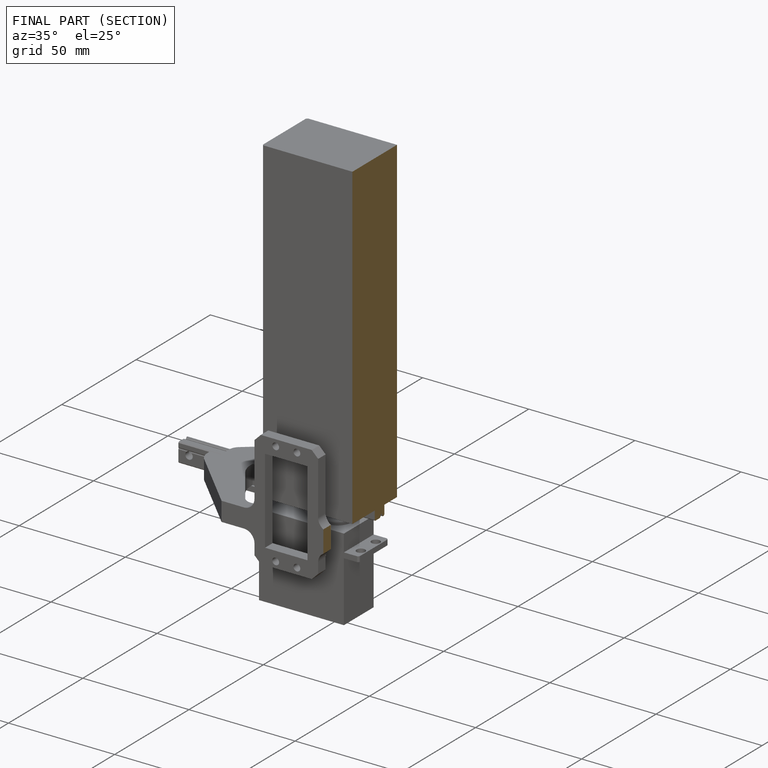
[diagram: finished part — half-section view (interior)]
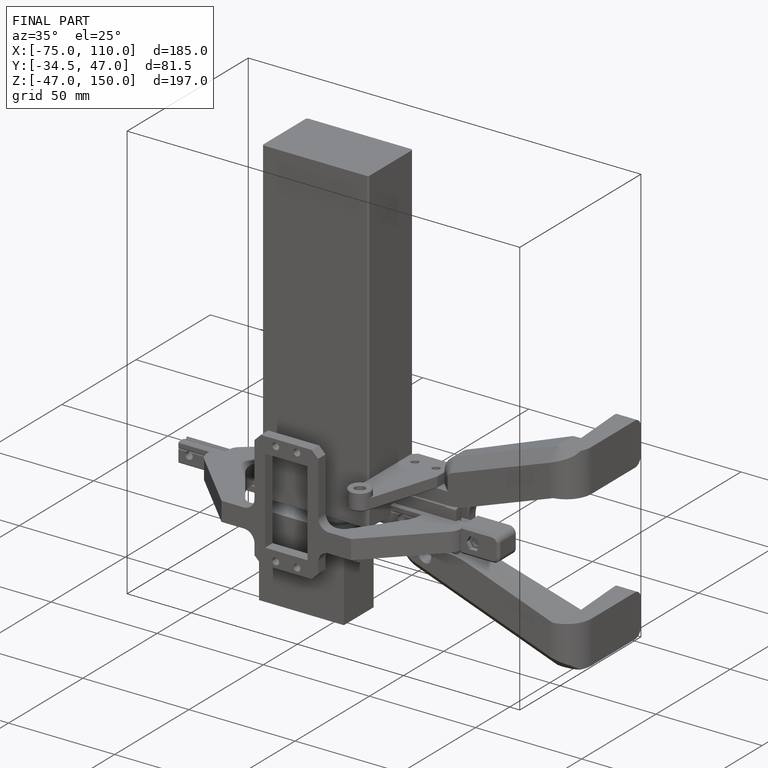
[diagram: finished part — iso view with bounding-box wireframe]
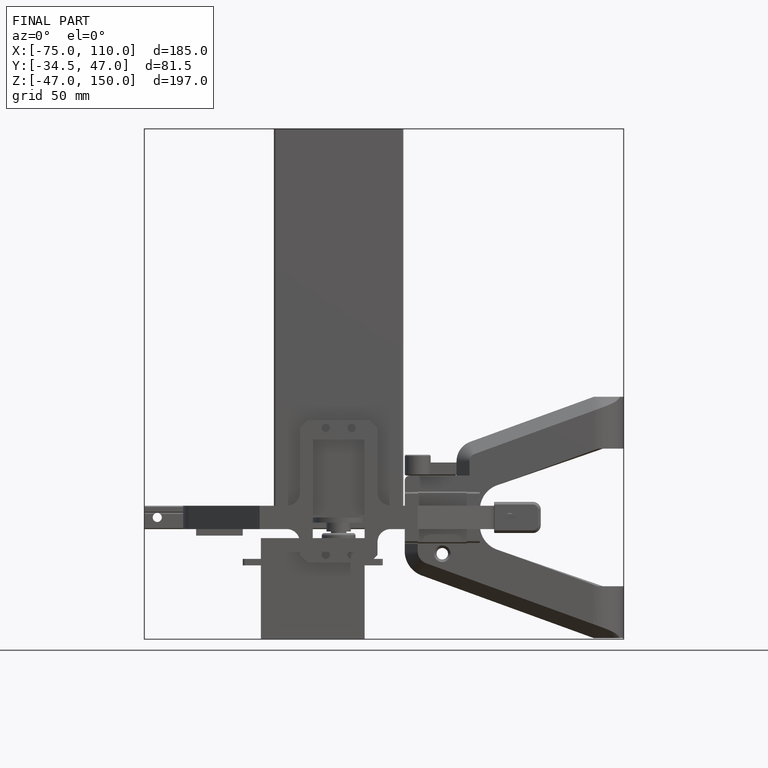
[diagram: finished part — front view with bounding-box wireframe]
